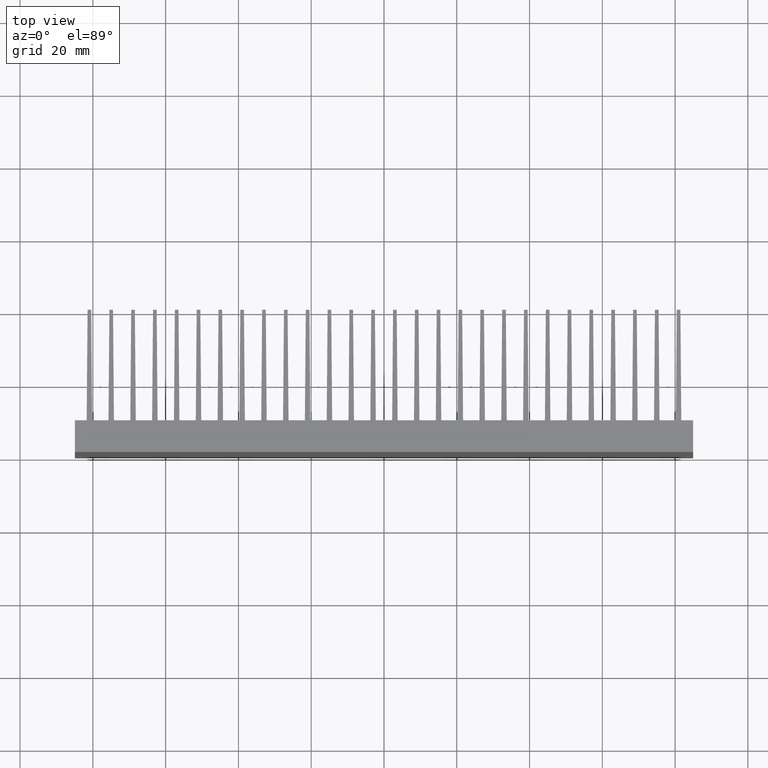
[diagram: clean part render]
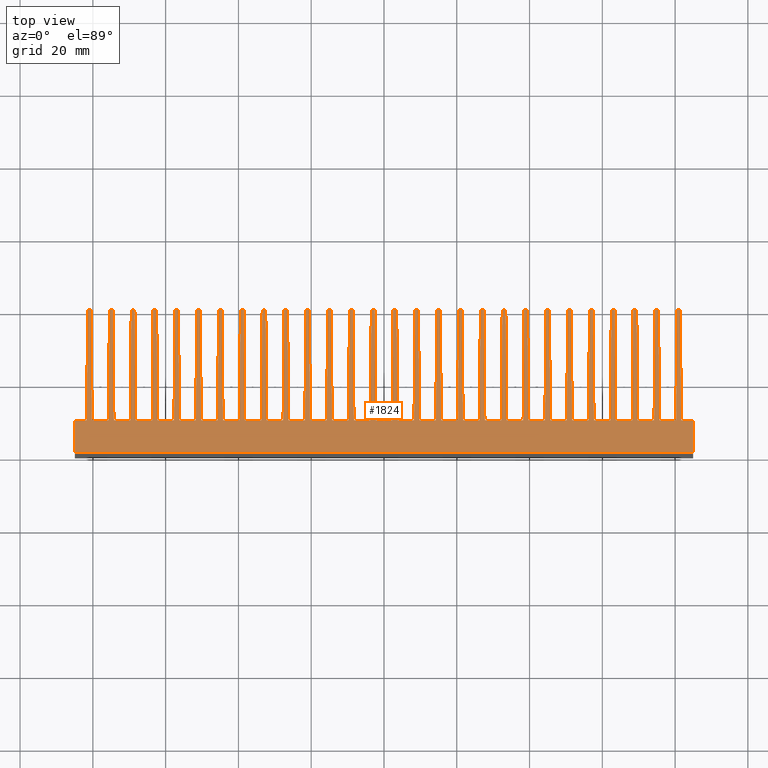
[diagram: same view with one face highlighted and labeled with its STEP entity id]
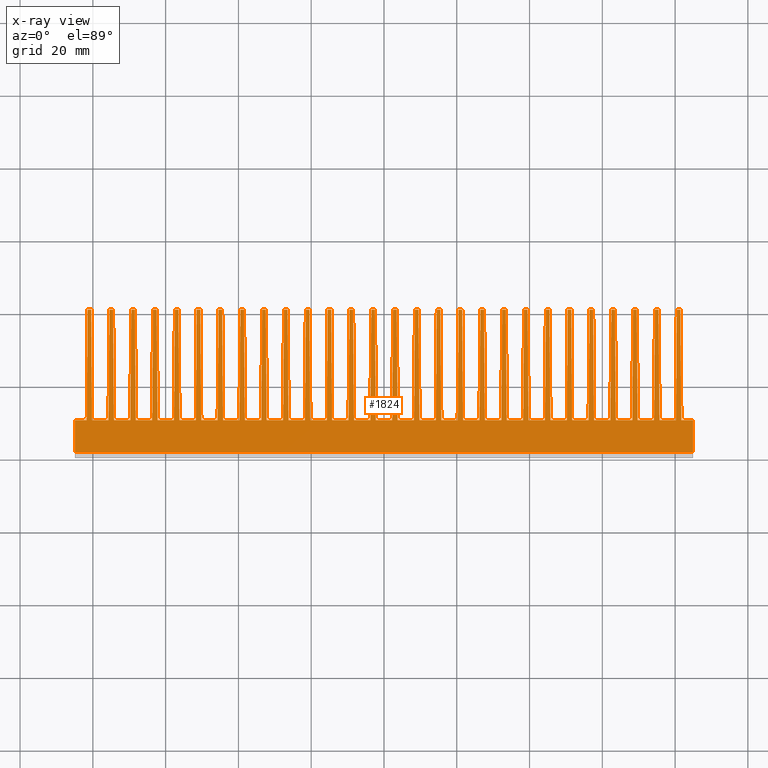
[diagram: x-ray of the same camera — body ghosted, the highlighted face saturated]
A machine part, top view. The second image highlights one B-rep face of the part: STEP entity #1824.
The next image is the same camera in x-ray: the body ghosted, the highlighted face saturated — about 0% of this face is hidden behind the body in this view.
In plain terms, the highlighted planar face has unit normal (0, 0, 1).
Its self-contained STEP definition (entity closure, byte-faithful):
#3 = CARTESIAN_POINT ( 'NONE',  ( 26.48303999999962599, 19.56251200000006918, 100.0000000000000000 ) ) ;
#4 = VERTEX_POINT ( 'NONE', #3162 ) ;
#6 = VECTOR ( 'NONE', #1157, 1000.000000000000114 ) ;
#8 = VERTEX_POINT ( 'NONE', #729 ) ;
#11 = LINE ( 'NONE', #1659, #6 ) ;
#29 = EDGE_CURVE ( 'NONE', #3586, #1692, #2043, .T. ) ;
#32 = CARTESIAN_POINT ( 'NONE',  ( 9.493919999998073678, 19.56251200000007273, 100.0000000000000000 ) ) ;
#34 = ORIENTED_EDGE ( 'NONE', *, *, #627, .T. ) ;
#45 = VERTEX_POINT ( 'NONE', #1727 ) ;
#47 = CARTESIAN_POINT ( 'NONE',  ( 51.71687999999949881, -10.81803199999957066, 100.0000000000000000 ) ) ;
#53 = DIRECTION ( 'NONE',  ( -0.008223406144932582373, -0.9999661872240358518, 0.0000000000000000000 ) ) ;
#57 = VECTOR ( 'NONE', #1649, 1000.000000000000227 ) ;
#60 = VECTOR ( 'NONE', #872, 1000.000000000000227 ) ;
#66 = CARTESIAN_POINT ( 'NONE',  ( -84.94560000000002731, -19.53748799999988250, 100.0000000000000000 ) ) ;
#73 = CARTESIAN_POINT ( 'NONE',  ( -50.46768000000113119, 19.56251200000005142, 100.0000000000000000 ) ) ;
#76 = DIRECTION ( 'NONE',  ( -0.008223406144887821304, -0.9999661872240361848, 0.0000000000000000000 ) ) ;
#78 = DIRECTION ( 'NONE',  ( -0.008223406144963184630, 0.9999661872240355187, 0.0000000000000000000 ) ) ;
#81 = CARTESIAN_POINT ( 'NONE',  ( -51.46704000000092805, 19.56251200000005142, 100.0000000000000000 ) ) ;
#82 = ORIENTED_EDGE ( 'NONE', *, *, #1459, .T. ) ;
#83 = ORIENTED_EDGE ( 'NONE', *, *, #3609, .T. ) ;
#93 = VECTOR ( 'NONE', #207, 1000.000000000000227 ) ;
#94 = CARTESIAN_POINT ( 'NONE',  ( -32.47920000000022611, 19.56251200000006207, 100.0000000000000000 ) ) ;
#96 = ORIENTED_EDGE ( 'NONE', *, *, #1485, .T. ) ;
#99 = VERTEX_POINT ( 'NONE', #834 ) ;
#103 = VECTOR ( 'NONE', #816, 1000.000000000000000 ) ;
#111 = CARTESIAN_POINT ( 'NONE',  ( -21.48624000000110001, 19.56251200000006207, 100.0000000000000000 ) ) ;
#112 = ORIENTED_EDGE ( 'NONE', *, *, #1000, .T. ) ;
#115 = ORIENTED_EDGE ( 'NONE', *, *, #3686, .T. ) ;
#132 = VERTEX_POINT ( 'NONE', #561 ) ;
#136 = ORIENTED_EDGE ( 'NONE', *, *, #3100, .T. ) ;
#141 = LINE ( 'NONE', #2219, #982 ) ;
#142 = DIRECTION ( 'NONE',  ( -0.008223406144917512831, 0.9999661872240360738, 0.0000000000000000000 ) ) ;
#150 = EDGE_CURVE ( 'NONE', #4, #1143, #3421, .T. ) ;
#155 = CARTESIAN_POINT ( 'NONE',  ( -26.23320000000150287, -10.81803199999958665, 100.0000000000000000 ) ) ;
#156 = VECTOR ( 'NONE', #2655, 1000.000000000000000 ) ;
#166 = CARTESIAN_POINT ( 'NONE',  ( -68.20632000000159678, -10.81803199999959730, 100.0000000000000000 ) ) ;
#168 = VECTOR ( 'NONE', #2084, 1000.000000000000227 ) ;
#171 = EDGE_CURVE ( 'NONE', #904, #1480, #3503, .T. ) ;
#183 = VERTEX_POINT ( 'NONE', #1070 ) ;
#190 = VERTEX_POINT ( 'NONE', #2091 ) ;
#206 = CARTESIAN_POINT ( 'NONE',  ( 33.47855999999909926, 19.56251200000006918, 100.0000000000000000 ) ) ;
#207 = DIRECTION ( 'NONE',  ( -0.008223406144963184630, 0.9999661872240355187, 0.0000000000000000000 ) ) ;
#211 = CARTESIAN_POINT ( 'NONE',  ( 38.47535999999898593, 19.56251200000007273, 100.0000000000000000 ) ) ;
#217 = VERTEX_POINT ( 'NONE', #1792 ) ;
#220 = CARTESIAN_POINT ( 'NONE',  ( 45.72071999999889158, -10.81803199999957066, 100.0000000000000000 ) ) ;
#222 = VERTEX_POINT ( 'NONE', #1644 ) ;
#227 = VERTEX_POINT ( 'NONE', #1759 ) ;
#228 = VERTEX_POINT ( 'NONE', #1656 ) ;
#233 = CARTESIAN_POINT ( 'NONE',  ( -81.69768000000067332, -10.81803199999960441, 100.0000000000000000 ) ) ;
#236 = CARTESIAN_POINT ( 'NONE',  ( 57.71303999999963708, -10.81803199999957066, 100.0000000000000000 ) ) ;
#238 = ORIENTED_EDGE ( 'NONE', *, *, #3592, .T. ) ;
#248 = EDGE_CURVE ( 'NONE', #3140, #289, #1282, .T. ) ;
#253 = DIRECTION ( 'NONE',  ( 1.000000000000000000, 0.0000000000000000000, 0.0000000000000000000 ) ) ;
#256 = ORIENTED_EDGE ( 'NONE', *, *, #1739, .T. ) ;
#264 = LINE ( 'NONE', #1851, #168 ) ;
#266 = CARTESIAN_POINT ( 'NONE',  ( 38.47535999999898593, 19.56251200000007273, 100.0000000000000000 ) ) ;
#271 = EDGE_CURVE ( 'NONE', #328, #3140, #1382, .T. ) ;
#276 = VERTEX_POINT ( 'NONE', #3738 ) ;
#289 = VERTEX_POINT ( 'NONE', #926 ) ;
#292 = ORIENTED_EDGE ( 'NONE', *, *, #2816, .T. ) ;
#297 = EDGE_LOOP ( 'NONE', ( #1350, #2881, #1109, #1917, #1854, #3393, #578, #2421, #3156, #481, #83, #2700, #1793, #2798, #2480, #2935, #3920, #535, #1158, #3440, #2746, #363, #3799, #3287, #3650, #2845, #863, #115, #2808, #3286, #1422, #510, #2241, #1133, #864, #821, #1954, #2869, #2604, #2678, #1730, #1632, #238, #497, #637, #34, #2991, #2908, #2161, #3485, #3578, #3401, #2830, #3909, #3218, #1952, #1301, #1377, #1559, #3908, #712, #1506, #2339, #3318, #3622, #2379, #461, #717, #2563, #2858, #2390, #3395, #1257, #3213, #2937, #2271, #3007, #1425, #1227, #3665, #1468, #256, #342, #1533, #3096, #112, #1994, #3760, #3765, #390, #1895, #3753, #2950, #2235, #3705, #3577, #3581, #3591, #82, #136, #2092, #3780, #1619, #1812, #1128, #292, #345, #96, #3878, #2321, #3841, #3524, #3656, #3399, #3203, #3252 ) ) ;
#302 = CARTESIAN_POINT ( 'NONE',  ( -3.747600000000151255, -10.81803199999958487, 100.0000000000000000 ) ) ;
#304 = EDGE_CURVE ( 'NONE', #1440, #3882, #1565, .T. ) ;
#309 = EDGE_CURVE ( 'NONE', #2537, #2014, #1542, .T. ) ;
#311 = LINE ( 'NONE', #236, #60 ) ;
#320 = DIRECTION ( 'NONE',  ( -0.008223406144932582373, -0.9999661872240358518, 0.0000000000000000000 ) ) ;
#323 = CARTESIAN_POINT ( 'NONE',  ( -56.46384000000126946, 19.56251200000005142, 100.0000000000000000 ) ) ;
#326 = CARTESIAN_POINT ( 'NONE',  ( -57.71304000000010603, -10.81803199999959553, 100.0000000000000000 ) ) ;
#328 = VERTEX_POINT ( 'NONE', #2331 ) ;
#333 = DIRECTION ( 'NONE',  ( -1.000000000000000000, -3.857409799997861729E-16, 0.0000000000000000000 ) ) ;
#336 = LINE ( 'NONE', #3849, #446 ) ;
#338 = CARTESIAN_POINT ( 'NONE',  ( 32.47919999999976426, 19.56251200000006918, 100.0000000000000000 ) ) ;
#342 = ORIENTED_EDGE ( 'NONE', *, *, #2956, .T. ) ;
#345 = ORIENTED_EDGE ( 'NONE', *, *, #790, .T. ) ;
#356 = EDGE_CURVE ( 'NONE', #2873, #183, #1943, .T. ) ;
#363 = ORIENTED_EDGE ( 'NONE', *, *, #271, .T. ) ;
#366 = VERTEX_POINT ( 'NONE', #266 ) ;
#368 = CARTESIAN_POINT ( 'NONE',  ( 56.21399999999993469, -10.81803199999957066, 100.0000000000000000 ) ) ;
#370 = LINE ( 'NONE', #166, #470 ) ;
#376 = LINE ( 'NONE', #1062, #673 ) ;
#390 = ORIENTED_EDGE ( 'NONE', *, *, #1193, .T. ) ;
#395 = EDGE_CURVE ( 'NONE', #1205, #2992, #2860, .T. ) ;
#397 = DIRECTION ( 'NONE',  ( -0.008223406144888277536, 0.9999661872240361848, 0.0000000000000000000 ) ) ;
#400 = VERTEX_POINT ( 'NONE', #1185 ) ;
#401 = CARTESIAN_POINT ( 'NONE',  ( -75.45168000000104769, 19.56251200000004786, 100.0000000000000000 ) ) ;
#415 = LINE ( 'NONE', #3839, #503 ) ;
#417 = LINE ( 'NONE', #220, #93 ) ;
#418 = VERTEX_POINT ( 'NONE', #2788 ) ;
#420 = VERTEX_POINT ( 'NONE', #1034 ) ;
#421 = CARTESIAN_POINT ( 'NONE',  ( 2.248559999999988790, -10.81803199999958132, 100.0000000000000000 ) ) ;
#422 = CARTESIAN_POINT ( 'NONE',  ( -63.45936000000029509, 19.56251200000005142, 100.0000000000000000 ) ) ;
#423 = LINE ( 'NONE', #3595, #468 ) ;
#424 = EDGE_CURVE ( 'NONE', #2177, #1679, #2769, .T. ) ;
#426 = EDGE_CURVE ( 'NONE', #2936, #486, #1714, .T. ) ;
#433 = DIRECTION ( 'NONE',  ( -1.000000000000000000, 0.0000000000000000000, 0.0000000000000000000 ) ) ;
#436 = CARTESIAN_POINT ( 'NONE',  ( -56.21400000000132025, -10.81803199999959375, 100.0000000000000000 ) ) ;
#438 = VERTEX_POINT ( 'NONE', #1500 ) ;
#441 = CARTESIAN_POINT ( 'NONE',  ( -8.494560000000568323, 19.56251200000005852, 100.0000000000000000 ) ) ;
#444 = EDGE_CURVE ( 'NONE', #2504, #2975, #2872, .T. ) ;
#446 = VECTOR ( 'NONE', #3628, 1000.000000000000114 ) ;
#460 = VERTEX_POINT ( 'NONE', #2727 ) ;
#461 = ORIENTED_EDGE ( 'NONE', *, *, #1510, .T. ) ;
#465 = LINE ( 'NONE', #1754, #2205 ) ;
#468 = VECTOR ( 'NONE', #3582, 1000.000000000000000 ) ;
#470 = VECTOR ( 'NONE', #3594, 1000.000000000000114 ) ;
#474 = CARTESIAN_POINT ( 'NONE',  ( 84.95439999999997838, -10.81803199999956000, 100.0000000000000000 ) ) ;
#481 = ORIENTED_EDGE ( 'NONE', *, *, #2447, .T. ) ;
#486 = VERTEX_POINT ( 'NONE', #3887 ) ;
#488 = VECTOR ( 'NONE', #2654, 1000.000000000000000 ) ;
#493 = DIRECTION ( 'NONE',  ( 0.0000000000000000000, -1.000000000000000000, 0.0000000000000000000 ) ) ;
#494 = EDGE_CURVE ( 'NONE', #438, #2559, #2668, .T. ) ;
#496 = VECTOR ( 'NONE', #2649, 1000.000000000000000 ) ;
#497 = ORIENTED_EDGE ( 'NONE', *, *, #3202, .T. ) ;
#498 = CARTESIAN_POINT ( 'NONE',  ( 21.48623999999835377, 19.56251200000006918, 100.0000000000000000 ) ) ;
#501 = CARTESIAN_POINT ( 'NONE',  ( -51.46704000000092805, 19.56251200000005142, 100.0000000000000000 ) ) ;
#503 = VECTOR ( 'NONE', #3571, 1000.000000000000114 ) ;
#504 = EDGE_CURVE ( 'NONE', #1027, #1654, #2517, .T. ) ;
#508 = LINE ( 'NONE', #740, #103 ) ;
#509 = CARTESIAN_POINT ( 'NONE',  ( -84.94560000000002731, -10.81803199999960441, 100.0000000000000000 ) ) ;
#510 = ORIENTED_EDGE ( 'NONE', *, *, #3326, .T. ) ;
#516 = VECTOR ( 'NONE', #2158, 1000.000000000000000 ) ;
#522 = EDGE_CURVE ( 'NONE', #3812, #1518, #2485, .T. ) ;
#527 = CARTESIAN_POINT ( 'NONE',  ( 68.20632000000024675, -10.81803199999956711, 100.0000000000000000 ) ) ;
#535 = ORIENTED_EDGE ( 'NONE', *, *, #356, .T. ) ;
#554 = LINE ( 'NONE', #3504, #516 ) ;
#561 = CARTESIAN_POINT ( 'NONE',  ( 63.70919999999978245, -10.81803199999956888, 100.0000000000000000 ) ) ;
#562 = DIRECTION ( 'NONE',  ( -0.008223406144917910082, -0.9999661872240359628, 0.0000000000000000000 ) ) ;
#568 = LINE ( 'NONE', #1127, #917 ) ;
#578 = ORIENTED_EDGE ( 'NONE', *, *, #1768, .T. ) ;
#601 = DIRECTION ( 'NONE',  ( -0.008223406144962728398, -0.9999661872240355187, 0.0000000000000000000 ) ) ;
#609 = CARTESIAN_POINT ( 'NONE',  ( -38.22552000000178651, -10.81803199999958842, 100.0000000000000000 ) ) ;
#610 = CARTESIAN_POINT ( 'NONE',  ( 68.45615999999881751, 19.56251200000007984, 100.0000000000000000 ) ) ;
#613 = CARTESIAN_POINT ( 'NONE',  ( 69.45551999999815962, 19.56251200000007984, 100.0000000000000000 ) ) ;
#619 = CARTESIAN_POINT ( 'NONE',  ( -9.493920000000795056, 19.56251200000005852, 100.0000000000000000 ) ) ;
#621 = VECTOR ( 'NONE', #1926, 1000.000000000000000 ) ;
#624 = CARTESIAN_POINT ( 'NONE',  ( -50.21784000000116777, -10.81803199999959375, 100.0000000000000000 ) ) ;
#626 = CARTESIAN_POINT ( 'NONE',  ( 51.46703999999863299, 19.56251200000007984, 100.0000000000000000 ) ) ;
#627 = EDGE_CURVE ( 'NONE', #190, #2755, #11, .T. ) ;
#629 = CARTESIAN_POINT ( 'NONE',  ( -38.47536000000037859, 19.56251200000005497, 100.0000000000000000 ) ) ;
#633 = VERTEX_POINT ( 'NONE', #3406 ) ;
#636 = CARTESIAN_POINT ( 'NONE',  ( 75.45167999999830499, 19.56251200000008339, 100.0000000000000000 ) ) ;
#637 = ORIENTED_EDGE ( 'NONE', *, *, #3741, .T. ) ;
#641 = DIRECTION ( 'NONE',  ( -0.008223406144917969063, -0.9999661872240360738, 0.0000000000000000000 ) ) ;
#644 = CARTESIAN_POINT ( 'NONE',  ( -27.48240000000032168, 19.56251200000006207, 100.0000000000000000 ) ) ;
#646 = VERTEX_POINT ( 'NONE', #2037 ) ;
#648 = DIRECTION ( 'NONE',  ( -1.000000000000000000, -3.857409799996695201E-16, 0.0000000000000000000 ) ) ;
#657 = CARTESIAN_POINT ( 'NONE',  ( 44.22168000000054633, -10.81803199999957066, 100.0000000000000000 ) ) ;
#658 = VERTEX_POINT ( 'NONE', #2779 ) ;
#665 = VECTOR ( 'NONE', #3375, 1000.000000000000000 ) ;
#669 = LINE ( 'NONE', #2607, #1379 ) ;
#671 = VERTEX_POINT ( 'NONE', #2103 ) ;
#673 = VECTOR ( 'NONE', #1498, 1000.000000000000000 ) ;
#684 = DIRECTION ( 'NONE',  ( -1.000000000000000000, 0.0000000000000000000, 0.0000000000000000000 ) ) ;
#691 = DIRECTION ( 'NONE',  ( -1.000000000000000000, 0.0000000000000000000, 0.0000000000000000000 ) ) ;
#698 = DIRECTION ( 'NONE',  ( -1.000000000000000000, 0.0000000000000000000, 0.0000000000000000000 ) ) ;
#700 = CARTESIAN_POINT ( 'NONE',  ( -21.73607999999967788, -10.81803199999958487, 100.0000000000000000 ) ) ;
#706 = DIRECTION ( 'NONE',  ( -0.008223406144888279271, 0.9999661872240361848, 0.0000000000000000000 ) ) ;
#709 = CARTESIAN_POINT ( 'NONE',  ( -56.46384000000126946, 19.56251200000005142, 100.0000000000000000 ) ) ;
#712 = ORIENTED_EDGE ( 'NONE', *, *, #2198, .T. ) ;
#713 = EDGE_CURVE ( 'NONE', #633, #1415, #909, .T. ) ;
#714 = DIRECTION ( 'NONE',  ( -1.000000000000000000, 0.0000000000000000000, 0.0000000000000000000 ) ) ;
#717 = ORIENTED_EDGE ( 'NONE', *, *, #1016, .T. ) ;
#723 = VERTEX_POINT ( 'NONE', #2026 ) ;
#725 = CARTESIAN_POINT ( 'NONE',  ( 2.498399999999926901, 19.56251200000006563, 100.0000000000000000 ) ) ;
#726 = EDGE_CURVE ( 'NONE', #3763, #795, #465, .T. ) ;
#728 = CARTESIAN_POINT ( 'NONE',  ( -20.48688000000084486, 19.56251200000006207, 100.0000000000000000 ) ) ;
#729 = CARTESIAN_POINT ( 'NONE',  ( -84.94560000000002731, -10.81803199999960441, 100.0000000000000000 ) ) ;
#731 = LINE ( 'NONE', #1556, #777 ) ;
#732 = CARTESIAN_POINT ( 'NONE',  ( -15.73992000000090030, -10.81803199999958665, 100.0000000000000000 ) ) ;
#736 = CARTESIAN_POINT ( 'NONE',  ( 75.70151999999917791, -10.81803199999956355, 100.0000000000000000 ) ) ;
#738 = DIRECTION ( 'NONE',  ( -1.000000000000000000, -3.857409799997861729E-16, 0.0000000000000000000 ) ) ;
#740 = CARTESIAN_POINT ( 'NONE',  ( -39.72455999999921517, -10.81803199999959020, 100.0000000000000000 ) ) ;
#741 = VERTEX_POINT ( 'NONE', #2307 ) ;
#745 = EDGE_CURVE ( 'NONE', #2931, #2504, #820, .T. ) ;
#746 = CARTESIAN_POINT ( 'NONE',  ( -68.45616000000063650, 19.56251200000004786, 100.0000000000000000 ) ) ;
#752 = DIRECTION ( 'NONE',  ( -0.008223406144887821304, 0.9999661872240361848, 0.0000000000000000000 ) ) ;
#753 = LINE ( 'NONE', #3321, #766 ) ;
#755 = CARTESIAN_POINT ( 'NONE',  ( -32.22936000000164825, -10.81803199999958665, 100.0000000000000000 ) ) ;
#760 = VECTOR ( 'NONE', #853, 1000.000000000000227 ) ;
#762 = EDGE_CURVE ( 'NONE', #3333, #3718, #818, .T. ) ;
#763 = VECTOR ( 'NONE', #3929, 1000.000000000000114 ) ;
#766 = VECTOR ( 'NONE', #3352, 1000.000000000000000 ) ;
#769 = CARTESIAN_POINT ( 'NONE',  ( 62.45999999999957453, 19.56251200000007628, 100.0000000000000000 ) ) ;
#775 = VECTOR ( 'NONE', #859, 1000.000000000000000 ) ;
#777 = VECTOR ( 'NONE', #1306, 1000.000000000000227 ) ;
#778 = CARTESIAN_POINT ( 'NONE',  ( -39.47472000000063730, 19.56251200000005497, 100.0000000000000000 ) ) ;
#783 = DIRECTION ( 'NONE',  ( -0.008223406144933269324, 0.9999661872240358518, 0.0000000000000000000 ) ) ;
#786 = VERTEX_POINT ( 'NONE', #2852 ) ;
#788 = LINE ( 'NONE', #3473, #665 ) ;
#790 = EDGE_CURVE ( 'NONE', #418, #420, #3902, .T. ) ;
#795 = VERTEX_POINT ( 'NONE', #2730 ) ;
#797 = CARTESIAN_POINT ( 'NONE',  ( -80.19864000000097803, -10.81803199999960263, 100.0000000000000000 ) ) ;
#802 = DIRECTION ( 'NONE',  ( -1.000000000000000000, -3.857409799997063994E-16, 0.0000000000000000000 ) ) ;
#812 = LINE ( 'NONE', #1202, #2195 ) ;
#816 = DIRECTION ( 'NONE',  ( -1.000000000000000000, -3.857409799995909299E-16, 0.0000000000000000000 ) ) ;
#818 = LINE ( 'NONE', #1008, #488 ) ;
#820 = LINE ( 'NONE', #1114, #763 ) ;
#821 = ORIENTED_EDGE ( 'NONE', *, *, #1405, .T. ) ;
#824 = CARTESIAN_POINT ( 'NONE',  ( -33.47856000000048482, 19.56251200000006207, 100.0000000000000000 ) ) ;
#827 = CARTESIAN_POINT ( 'NONE',  ( 39.47471999999788039, 19.56251200000007273, 100.0000000000000000 ) ) ;
#829 = CARTESIAN_POINT ( 'NONE',  ( -63.70920000000023009, -10.81803199999959553, 100.0000000000000000 ) ) ;
#834 = CARTESIAN_POINT ( 'NONE',  ( -26.48304000000098313, 19.56251200000006207, 100.0000000000000000 ) ) ;
#835 = VERTEX_POINT ( 'NONE', #2551 ) ;
#836 = CARTESIAN_POINT ( 'NONE',  ( 69.70535999999903254, -10.81803199999956711, 100.0000000000000000 ) ) ;
#840 = LINE ( 'NONE', #155, #850 ) ;
#842 = VERTEX_POINT ( 'NONE', #233 ) ;
#850 = VECTOR ( 'NONE', #142, 999.9999999999998863 ) ;
#853 = DIRECTION ( 'NONE',  ( -0.008223406144963198508, 0.9999661872240355187, 0.0000000000000000000 ) ) ;
#856 = CARTESIAN_POINT ( 'NONE',  ( 38.22552000000040806, -10.81803199999957421, 100.0000000000000000 ) ) ;
#859 = DIRECTION ( 'NONE',  ( -0.008223406144933038606, -0.9999661872240358518, 0.0000000000000000000 ) ) ;
#860 = CARTESIAN_POINT ( 'NONE',  ( 27.48239999999849204, 19.56251200000006918, 100.0000000000000000 ) ) ;
#863 = ORIENTED_EDGE ( 'NONE', *, *, #1549, .T. ) ;
#864 = ORIENTED_EDGE ( 'NONE', *, *, #2286, .T. ) ;
#868 = LINE ( 'NONE', #1163, #1012 ) ;
#871 = EDGE_CURVE ( 'NONE', #1400, #460, #3862, .T. ) ;
#872 = DIRECTION ( 'NONE',  ( -0.008223406144963184630, 0.9999661872240355187, 0.0000000000000000000 ) ) ;
#873 = EDGE_CURVE ( 'NONE', #289, #1819, #417, .T. ) ;
#875 = DIRECTION ( 'NONE',  ( -1.000000000000000000, 0.0000000000000000000, 0.0000000000000000000 ) ) ;
#876 = CARTESIAN_POINT ( 'NONE',  ( 3.747599999999690290, -10.81803199999957954, 100.0000000000000000 ) ) ;
#877 = CARTESIAN_POINT ( 'NONE',  ( -2.248560000000448866, -10.81803199999958309, 100.0000000000000000 ) ) ;
#879 = CARTESIAN_POINT ( 'NONE',  ( -2.498400000000402521, 19.56251200000006563, 100.0000000000000000 ) ) ;
#881 = CARTESIAN_POINT ( 'NONE',  ( -44.47152000000052396, 19.56251200000005497, 100.0000000000000000 ) ) ;
#882 = VERTEX_POINT ( 'NONE', #1968 ) ;
#893 = LINE ( 'NONE', #111, #942 ) ;
#903 = LINE ( 'NONE', #81, #940 ) ;
#904 = VERTEX_POINT ( 'NONE', #1009 ) ;
#908 = CARTESIAN_POINT ( 'NONE',  ( -84.94560000000002731, -19.53748799999988250, 100.0000000000000000 ) ) ;
#909 = LINE ( 'NONE', #1136, #156 ) ;
#912 = DIRECTION ( 'NONE',  ( -1.000000000000000000, 0.0000000000000000000, 0.0000000000000000000 ) ) ;
#915 = CARTESIAN_POINT ( 'NONE',  ( 27.73223999999936140, -10.81803199999957776, 100.0000000000000000 ) ) ;
#917 = VECTOR ( 'NONE', #2776, 1000.000000000000114 ) ;
#918 = EDGE_CURVE ( 'NONE', #366, #1418, #3108, .T. ) ;
#925 = DIRECTION ( 'NONE',  ( -0.008223406144963184630, 0.9999661872240355187, 0.0000000000000000000 ) ) ;
#926 = CARTESIAN_POINT ( 'NONE',  ( 45.72071999999889158, -10.81803199999957066, 100.0000000000000000 ) ) ;
#927 = CARTESIAN_POINT ( 'NONE',  ( -33.72840000000043403, -10.81803199999958842, 100.0000000000000000 ) ) ;
#928 = VERTEX_POINT ( 'NONE', #3240 ) ;
#932 = CARTESIAN_POINT ( 'NONE',  ( -14.49072000000070837, 19.56251200000005852, 100.0000000000000000 ) ) ;
#939 = DIRECTION ( 'NONE',  ( -0.008223406144933040340, 0.9999661872240358518, 0.0000000000000000000 ) ) ;
#940 = VECTOR ( 'NONE', #53, 1000.000000000000114 ) ;
#941 = VERTEX_POINT ( 'NONE', #3233 ) ;
#942 = VECTOR ( 'NONE', #76, 1000.000000000000227 ) ;
#950 = VECTOR ( 'NONE', #3223, 1000.000000000000227 ) ;
#952 = LINE ( 'NONE', #47, #1004 ) ;
#954 = LINE ( 'NONE', #1346, #2132 ) ;
#962 = DIRECTION ( 'NONE',  ( -1.000000000000000000, 0.0000000000000000000, 0.0000000000000000000 ) ) ;
#963 = LINE ( 'NONE', #1484, #1101 ) ;
#982 = VECTOR ( 'NONE', #2206, 1000.000000000000000 ) ;
#993 = VERTEX_POINT ( 'NONE', #2658 ) ;
#999 = LINE ( 'NONE', #827, #1040 ) ;
#1000 = EDGE_CURVE ( 'NONE', #1053, #658, #336, .T. ) ;
#1001 = EDGE_CURVE ( 'NONE', #842, #8, #423, .T. ) ;
#1002 = DIRECTION ( 'NONE',  ( -1.000000000000000000, 0.0000000000000000000, 0.0000000000000000000 ) ) ;
#1004 = VECTOR ( 'NONE', #78, 1000.000000000000114 ) ;
#1005 = CARTESIAN_POINT ( 'NONE',  ( 81.69767999999930908, -10.81803199999956000, 100.0000000000000000 ) ) ;
#1008 = CARTESIAN_POINT ( 'NONE',  ( -9.743760000000287747, -10.81803199999958487, 100.0000000000000000 ) ) ;
#1009 = CARTESIAN_POINT ( 'NONE',  ( -38.47536000000037859, 19.56251200000005497, 100.0000000000000000 ) ) ;
#1012 = VECTOR ( 'NONE', #3552, 1000.000000000000000 ) ;
#1016 = EDGE_CURVE ( 'NONE', #3243, #1308, #415, .T. ) ;
#1018 = VERTEX_POINT ( 'NONE', #3522 ) ;
#1025 = CARTESIAN_POINT ( 'NONE',  ( 15.73991999999908131, -10.81803199999957599, 100.0000000000000000 ) ) ;
#1027 = VERTEX_POINT ( 'NONE', #3568 ) ;
#1033 = VERTEX_POINT ( 'NONE', #3729 ) ;
#1034 = CARTESIAN_POINT ( 'NONE',  ( -80.19864000000097803, -10.81803199999960263, 100.0000000000000000 ) ) ;
#1040 = VECTOR ( 'NONE', #2359, 1000.000000000000000 ) ;
#1047 = EDGE_CURVE ( 'NONE', #3017, #3886, #554, .T. ) ;
#1050 = DIRECTION ( 'NONE',  ( -0.008223406144963404940, 0.9999661872240355187, 0.0000000000000000000 ) ) ;
#1053 = VERTEX_POINT ( 'NONE', #3515 ) ;
#1057 = CARTESIAN_POINT ( 'NONE',  ( -81.44784000000119306, 19.56251200000004431, 100.0000000000000000 ) ) ;
#1058 = VECTOR ( 'NONE', #1455, 1000.000000000000000 ) ;
#1062 = CARTESIAN_POINT ( 'NONE',  ( -27.73224000000117684, -10.81803199999958665, 100.0000000000000000 ) ) ;
#1063 = LINE ( 'NONE', #1487, #1291 ) ;
#1070 = CARTESIAN_POINT ( 'NONE',  ( 56.21399999999993469, -10.81803199999957066, 100.0000000000000000 ) ) ;
#1072 = LINE ( 'NONE', #3618, #1125 ) ;
#1083 = AXIS2_PLACEMENT_3D ( 'NONE', #1293, #1237, #1232 ) ;
#1093 = LINE ( 'NONE', #3806, #1138 ) ;
#1101 = VECTOR ( 'NONE', #2495, 1000.000000000000000 ) ;
#1105 = VERTEX_POINT ( 'NONE', #3357 ) ;
#1109 = ORIENTED_EDGE ( 'NONE', *, *, #3930, .T. ) ;
#1111 = EDGE_CURVE ( 'NONE', #2688, #3800, #753, .T. ) ;
#1113 = VERTEX_POINT ( 'NONE', #3348 ) ;
#1114 = CARTESIAN_POINT ( 'NONE',  ( 2.498399999999926901, 19.56251200000006563, 100.0000000000000000 ) ) ;
#1119 = EDGE_CURVE ( 'NONE', #1454, #2540, #788, .T. ) ;
#1123 = EDGE_CURVE ( 'NONE', #486, #99, #840, .T. ) ;
#1125 = VECTOR ( 'NONE', #714, 1000.000000000000000 ) ;
#1127 = CARTESIAN_POINT ( 'NONE',  ( -8.244720000001974469, -10.81803199999958487, 100.0000000000000000 ) ) ;
#1128 = ORIENTED_EDGE ( 'NONE', *, *, #1111, .T. ) ;
#1133 = ORIENTED_EDGE ( 'NONE', *, *, #3544, .T. ) ;
#1136 = CARTESIAN_POINT ( 'NONE',  ( 8.244720000000128834, -10.81803199999957776, 100.0000000000000000 ) ) ;
#1138 = VECTOR ( 'NONE', #3714, 1000.000000000000227 ) ;
#1143 = VERTEX_POINT ( 'NONE', #3343 ) ;
#1147 = CARTESIAN_POINT ( 'NONE',  ( 32.47919999999976426, 19.56251200000006918, 100.0000000000000000 ) ) ;
#1157 = DIRECTION ( 'NONE',  ( -0.008223406144902436349, -0.9999661872240360738, 0.0000000000000000000 ) ) ;
#1158 = ORIENTED_EDGE ( 'NONE', *, *, #1700, .T. ) ;
#1161 = CARTESIAN_POINT ( 'NONE',  ( 62.21016000000008006, -10.81803199999956888, 100.0000000000000000 ) ) ;
#1163 = CARTESIAN_POINT ( 'NONE',  ( -69.70535999999947308, -10.81803199999959730, 100.0000000000000000 ) ) ;
#1166 = DIRECTION ( 'NONE',  ( -0.008223406144933498307, -0.9999661872240358518, 0.0000000000000000000 ) ) ;
#1169 = DIRECTION ( 'NONE',  ( -0.008223406144887592320, -0.9999661872240361848, 0.0000000000000000000 ) ) ;
#1173 = CARTESIAN_POINT ( 'NONE',  ( -68.20632000000159678, -10.81803199999959730, 100.0000000000000000 ) ) ;
#1176 = CARTESIAN_POINT ( 'NONE',  ( 26.48303999999962599, 19.56251200000006918, 100.0000000000000000 ) ) ;
#1179 = VECTOR ( 'NONE', #875, 1000.000000000000000 ) ;
#1182 = CARTESIAN_POINT ( 'NONE',  ( 3.497759999998821367, 19.56251200000006563, 100.0000000000000000 ) ) ;
#1185 = CARTESIAN_POINT ( 'NONE',  ( 39.47471999999788039, 19.56251200000007273, 100.0000000000000000 ) ) ;
#1187 = LINE ( 'NONE', #1646, #1389 ) ;
#1192 = EDGE_CURVE ( 'NONE', #2176, #2936, #893, .T. ) ;
#1193 = EDGE_CURVE ( 'NONE', #3221, #2177, #903, .T. ) ;
#1202 = CARTESIAN_POINT ( 'NONE',  ( -50.21784000000116777, -10.81803199999959375, 100.0000000000000000 ) ) ;
#1205 = VERTEX_POINT ( 'NONE', #32 ) ;
#1209 = DIRECTION ( 'NONE',  ( -0.008223406144932582373, -0.9999661872240358518, 0.0000000000000000000 ) ) ;
#1214 = LINE ( 'NONE', #879, #1179 ) ;
#1223 = EDGE_CURVE ( 'NONE', #786, #3489, #952, .T. ) ;
#1227 = ORIENTED_EDGE ( 'NONE', *, *, #871, .T. ) ;
#1229 = LINE ( 'NONE', #932, #1230 ) ;
#1230 = VECTOR ( 'NONE', #912, 1000.000000000000000 ) ;
#1232 = DIRECTION ( 'NONE',  ( 1.000000000000000000, 0.0000000000000000000, -0.0000000000000000000 ) ) ;
#1237 = DIRECTION ( 'NONE',  ( 0.0000000000000000000, 0.0000000000000000000, 1.000000000000000000 ) ) ;
#1243 = PLANE ( 'NONE',  #1083 ) ;
#1246 = EDGE_CURVE ( 'NONE', #400, #366, #999, .T. ) ;
#1252 = CARTESIAN_POINT ( 'NONE',  ( -27.48240000000032168, 19.56251200000006207, 100.0000000000000000 ) ) ;
#1257 = ORIENTED_EDGE ( 'NONE', *, *, #2694, .T. ) ;
#1259 = VERTEX_POINT ( 'NONE', #73 ) ;
#1260 = CARTESIAN_POINT ( 'NONE',  ( 45.47087999999801866, 19.56251200000007628, 100.0000000000000000 ) ) ;
#1268 = VERTEX_POINT ( 'NONE', #2367 ) ;
#1272 = LINE ( 'NONE', #915, #1287 ) ;
#1282 = LINE ( 'NONE', #1567, #3123 ) ;
#1283 = CARTESIAN_POINT ( 'NONE',  ( -15.73992000000090030, -10.81803199999958665, 100.0000000000000000 ) ) ;
#1285 = LINE ( 'NONE', #2597, #760 ) ;
#1287 = VECTOR ( 'NONE', #925, 1000.000000000000227 ) ;
#1291 = VECTOR ( 'NONE', #3619, 1000.000000000000227 ) ;
#1293 = CARTESIAN_POINT ( 'NONE',  ( 0.0000000000000000000, 0.0000000000000000000, 100.0000000000000000 ) ) ;
#1294 = EDGE_CURVE ( 'NONE', #1819, #1033, #1072, .T. ) ;
#1296 = EDGE_CURVE ( 'NONE', #2182, #941, #1093, .T. ) ;
#1301 = ORIENTED_EDGE ( 'NONE', *, *, #1406, .T. ) ;
#1306 = DIRECTION ( 'NONE',  ( -0.008223406144887821304, -0.9999661872240361848, 0.0000000000000000000 ) ) ;
#1308 = VERTEX_POINT ( 'NONE', #2600 ) ;
#1315 = LINE ( 'NONE', #732, #1465 ) ;
#1320 = VERTEX_POINT ( 'NONE', #3844 ) ;
#1346 = CARTESIAN_POINT ( 'NONE',  ( 51.46703999999863299, 19.56251200000007984, 100.0000000000000000 ) ) ;
#1350 = ORIENTED_EDGE ( 'NONE', *, *, #150, .T. ) ;
#1356 = LINE ( 'NONE', #829, #1367 ) ;
#1367 = VECTOR ( 'NONE', #802, 1000.000000000000000 ) ;
#1373 = CARTESIAN_POINT ( 'NONE',  ( 50.46767999999929089, 19.56251200000007984, 100.0000000000000000 ) ) ;
#1376 = LINE ( 'NONE', #709, #1526 ) ;
#1377 = ORIENTED_EDGE ( 'NONE', *, *, #494, .T. ) ;
#1379 = VECTOR ( 'NONE', #2787, 1000.000000000000000 ) ;
#1382 = LINE ( 'NONE', #1373, #1417 ) ;
#1389 = VECTOR ( 'NONE', #1586, 1000.000000000000000 ) ;
#1397 = EDGE_CURVE ( 'NONE', #3530, #222, #1229, .T. ) ;
#1400 = VERTEX_POINT ( 'NONE', #927 ) ;
#1402 = CARTESIAN_POINT ( 'NONE',  ( 56.46383999999942915, 19.56251200000007984, 100.0000000000000000 ) ) ;
#1405 = EDGE_CURVE ( 'NONE', #3922, #1454, #1272, .T. ) ;
#1406 = EDGE_CURVE ( 'NONE', #993, #438, #1214, .T. ) ;
#1415 = VERTEX_POINT ( 'NONE', #876 ) ;
#1417 = VECTOR ( 'NONE', #1989, 1000.000000000000114 ) ;
#1418 = VERTEX_POINT ( 'NONE', #856 ) ;
#1422 = ORIENTED_EDGE ( 'NONE', *, *, #3838, .T. ) ;
#1424 = LINE ( 'NONE', #797, #1432 ) ;
#1425 = ORIENTED_EDGE ( 'NONE', *, *, #2962, .T. ) ;
#1432 = VECTOR ( 'NONE', #783, 1000.000000000000114 ) ;
#1434 = CARTESIAN_POINT ( 'NONE',  ( -14.49072000000070837, 19.56251200000005852, 100.0000000000000000 ) ) ;
#1440 = VERTEX_POINT ( 'NONE', #836 ) ;
#1453 = LINE ( 'NONE', #728, #1479 ) ;
#1454 = VERTEX_POINT ( 'NONE', #860 ) ;
#1455 = DIRECTION ( 'NONE',  ( -1.000000000000000000, 0.0000000000000000000, 0.0000000000000000000 ) ) ;
#1459 = EDGE_CURVE ( 'NONE', #2014, #3412, #1356, .T. ) ;
#1465 = VECTOR ( 'NONE', #738, 1000.000000000000000 ) ;
#1468 = ORIENTED_EDGE ( 'NONE', *, *, #171, .T. ) ;
#1473 = CARTESIAN_POINT ( 'NONE',  ( -57.46320000000016393, 19.56251200000005142, 100.0000000000000000 ) ) ;
#1479 = VECTOR ( 'NONE', #684, 1000.000000000000000 ) ;
#1480 = VERTEX_POINT ( 'NONE', #778 ) ;
#1484 = CARTESIAN_POINT ( 'NONE',  ( -45.72072000000071057, -10.81803199999959197, 100.0000000000000000 ) ) ;
#1485 = EDGE_CURVE ( 'NONE', #420, #227, #1424, .T. ) ;
#1487 = CARTESIAN_POINT ( 'NONE',  ( 15.73991999999908131, -10.81803199999957599, 100.0000000000000000 ) ) ;
#1497 = DIRECTION ( 'NONE',  ( -1.000000000000000000, -3.857409799997861729E-16, 0.0000000000000000000 ) ) ;
#1498 = DIRECTION ( 'NONE',  ( -1.000000000000000000, 0.0000000000000000000, 0.0000000000000000000 ) ) ;
#1500 = CARTESIAN_POINT ( 'NONE',  ( -3.497760000000656788, 19.56251200000006563, 100.0000000000000000 ) ) ;
#1503 = CARTESIAN_POINT ( 'NONE',  ( 74.20247999999946842, -10.81803199999956533, 100.0000000000000000 ) ) ;
#1506 = ORIENTED_EDGE ( 'NONE', *, *, #1621, .T. ) ;
#1507 = DIRECTION ( 'NONE',  ( -0.008223406144932526862, -0.9999661872240358518, 0.0000000000000000000 ) ) ;
#1510 = EDGE_CURVE ( 'NONE', #3095, #3243, #1315, .T. ) ;
#1513 = DIRECTION ( 'NONE',  ( -0.008223406144917740079, -0.9999661872240360738, 0.0000000000000000000 ) ) ;
#1518 = VERTEX_POINT ( 'NONE', #769 ) ;
#1526 = VECTOR ( 'NONE', #698, 1000.000000000000000 ) ;
#1527 = DIRECTION ( 'NONE',  ( -1.000000000000000000, 0.0000000000000000000, 0.0000000000000000000 ) ) ;
#1533 = ORIENTED_EDGE ( 'NONE', *, *, #3267, .T. ) ;
#1534 = DIRECTION ( 'NONE',  ( -1.000000000000000000, 0.0000000000000000000, 0.0000000000000000000 ) ) ;
#1539 = VERTEX_POINT ( 'NONE', #736 ) ;
#1542 = LINE ( 'NONE', #2070, #1918 ) ;
#1543 = EDGE_CURVE ( 'NONE', #1701, #3586, #1376, .T. ) ;
#1545 = EDGE_CURVE ( 'NONE', #1308, #2176, #1453, .T. ) ;
#1549 = EDGE_CURVE ( 'NONE', #3661, #1760, #1562, .T. ) ;
#1556 = CARTESIAN_POINT ( 'NONE',  ( 20.48687999999945930, 19.56251200000006918, 100.0000000000000000 ) ) ;
#1559 = ORIENTED_EDGE ( 'NONE', *, *, #2068, .T. ) ;
#1562 = LINE ( 'NONE', #657, #1618 ) ;
#1565 = LINE ( 'NONE', #1696, #1611 ) ;
#1567 = CARTESIAN_POINT ( 'NONE',  ( 50.21784000000071302, -10.81803199999957066, 100.0000000000000000 ) ) ;
#1573 = CARTESIAN_POINT ( 'NONE',  ( 39.72455999999875331, -10.81803199999957243, 100.0000000000000000 ) ) ;
#1583 = LINE ( 'NONE', #824, #775 ) ;
#1586 = DIRECTION ( 'NONE',  ( -1.000000000000000000, 0.0000000000000000000, 0.0000000000000000000 ) ) ;
#1587 = DIRECTION ( 'NONE',  ( -0.008223406144888334782, 0.9999661872240361848, 0.0000000000000000000 ) ) ;
#1588 = DIRECTION ( 'NONE',  ( -0.008223406144963184630, 0.9999661872240355187, 0.0000000000000000000 ) ) ;
#1590 = LINE ( 'NONE', #2799, #1693 ) ;
#1593 = CARTESIAN_POINT ( 'NONE',  ( -14.24088000000211451, -10.81803199999958665, 100.0000000000000000 ) ) ;
#1594 = DIRECTION ( 'NONE',  ( -0.008223406144887821304, -0.9999661872240361848, 0.0000000000000000000 ) ) ;
#1600 = VERTEX_POINT ( 'NONE', #624 ) ;
#1605 = CARTESIAN_POINT ( 'NONE',  ( -51.71688000000087015, -10.81803199999959375, 100.0000000000000000 ) ) ;
#1607 = VERTEX_POINT ( 'NONE', #636 ) ;
#1611 = VECTOR ( 'NONE', #3110, 1000.000000000000227 ) ;
#1612 = CARTESIAN_POINT ( 'NONE',  ( 9.493919999998073678, 19.56251200000007273, 100.0000000000000000 ) ) ;
#1613 = EDGE_CURVE ( 'NONE', #3773, #2130, #1667, .T. ) ;
#1616 = CARTESIAN_POINT ( 'NONE',  ( -39.47472000000063730, 19.56251200000005497, 100.0000000000000000 ) ) ;
#1618 = VECTOR ( 'NONE', #648, 1000.000000000000000 ) ;
#1619 = ORIENTED_EDGE ( 'NONE', *, *, #3177, .T. ) ;
#1621 = EDGE_CURVE ( 'NONE', #217, #3333, #1722, .T. ) ;
#1632 = ORIENTED_EDGE ( 'NONE', *, *, #3154, .T. ) ;
#1640 = CARTESIAN_POINT ( 'NONE',  ( 44.22168000000054633, -10.81803199999957066, 100.0000000000000000 ) ) ;
#1642 = LINE ( 'NONE', #2930, #1737 ) ;
#1644 = CARTESIAN_POINT ( 'NONE',  ( -15.49008000000096175, 19.56251200000005852, 100.0000000000000000 ) ) ;
#1645 = CARTESIAN_POINT ( 'NONE',  ( -39.72455999999921517, -10.81803199999959020, 100.0000000000000000 ) ) ;
#1646 = CARTESIAN_POINT ( 'NONE',  ( 57.46319999999877126, 19.56251200000007984, 100.0000000000000000 ) ) ;
#1649 = DIRECTION ( 'NONE',  ( -0.008223406144887821304, -0.9999661872240361848, 0.0000000000000000000 ) ) ;
#1654 = VERTEX_POINT ( 'NONE', #498 ) ;
#1656 = CARTESIAN_POINT ( 'NONE',  ( 74.20247999999946842, -10.81803199999956533, 100.0000000000000000 ) ) ;
#1659 = CARTESIAN_POINT ( 'NONE',  ( 14.49071999999931926, 19.56251200000006918, 100.0000000000000000 ) ) ;
#1664 = VERTEX_POINT ( 'NONE', #527 ) ;
#1665 = CARTESIAN_POINT ( 'NONE',  ( 39.72455999999875331, -10.81803199999957243, 100.0000000000000000 ) ) ;
#1667 = LINE ( 'NONE', #644, #1674 ) ;
#1670 = VECTOR ( 'NONE', #939, 1000.000000000000114 ) ;
#1674 = VECTOR ( 'NONE', #601, 1000.000000000000227 ) ;
#1679 = VERTEX_POINT ( 'NONE', #436 ) ;
#1692 = VERTEX_POINT ( 'NONE', #326 ) ;
#1693 = VECTOR ( 'NONE', #2650, 1000.000000000000227 ) ;
#1696 = CARTESIAN_POINT ( 'NONE',  ( 69.70535999999903254, -10.81803199999956711, 100.0000000000000000 ) ) ;
#1700 = EDGE_CURVE ( 'NONE', #183, #786, #1826, .T. ) ;
#1701 = VERTEX_POINT ( 'NONE', #323 ) ;
#1714 = LINE ( 'NONE', #2592, #2818 ) ;
#1722 = LINE ( 'NONE', #619, #1725 ) ;
#1725 = VECTOR ( 'NONE', #562, 1000.000000000000114 ) ;
#1727 = CARTESIAN_POINT ( 'NONE',  ( 74.45231999999896289, 19.56251200000008339, 100.0000000000000000 ) ) ;
#1729 = VECTOR ( 'NONE', #493, 1000.000000000000000 ) ;
#1730 = ORIENTED_EDGE ( 'NONE', *, *, #2527, .T. ) ;
#1733 = VECTOR ( 'NONE', #1513, 999.9999999999998863 ) ;
#1737 = VECTOR ( 'NONE', #397, 1000.000000000000227 ) ;
#1739 = EDGE_CURVE ( 'NONE', #1480, #3029, #1817, .T. ) ;
#1743 = EDGE_CURVE ( 'NONE', #3718, #3530, #1872, .T. ) ;
#1754 = CARTESIAN_POINT ( 'NONE',  ( -32.47920000000022611, 19.56251200000006207, 100.0000000000000000 ) ) ;
#1759 = CARTESIAN_POINT ( 'NONE',  ( -80.44848000000092725, 19.56251200000004431, 100.0000000000000000 ) ) ;
#1760 = VERTEX_POINT ( 'NONE', #1573 ) ;
#1768 = EDGE_CURVE ( 'NONE', #228, #1440, #2004, .T. ) ;
#1792 = CARTESIAN_POINT ( 'NONE',  ( -9.493920000000795056, 19.56251200000005852, 100.0000000000000000 ) ) ;
#1793 = ORIENTED_EDGE ( 'NONE', *, *, #522, .T. ) ;
#1794 = DIRECTION ( 'NONE',  ( -1.000000000000000000, -3.471668820000614604E-15, 0.0000000000000000000 ) ) ;
#1810 = CARTESIAN_POINT ( 'NONE',  ( 84.95439999999997838, -19.53748799999988250, 100.0000000000000000 ) ) ;
#1812 = ORIENTED_EDGE ( 'NONE', *, *, #2136, .T. ) ;
#1817 = LINE ( 'NONE', #1616, #1878 ) ;
#1819 = VERTEX_POINT ( 'NONE', #1260 ) ;
#1824 = ADVANCED_FACE ( 'NONE', ( #2201 ), #1243, .T. ) ;
#1826 = LINE ( 'NONE', #368, #1829 ) ;
#1829 = VECTOR ( 'NONE', #333, 1000.000000000000000 ) ;
#1835 = EDGE_CURVE ( 'NONE', #2540, #835, #2254, .T. ) ;
#1851 = CARTESIAN_POINT ( 'NONE',  ( 75.70151999999917791, -10.81803199999956355, 100.0000000000000000 ) ) ;
#1854 = ORIENTED_EDGE ( 'NONE', *, *, #3034, .T. ) ;
#1857 = EDGE_CURVE ( 'NONE', #723, #2372, #2386, .T. ) ;
#1872 = LINE ( 'NONE', #1593, #1889 ) ;
#1878 = VECTOR ( 'NONE', #1594, 1000.000000000000227 ) ;
#1889 = VECTOR ( 'NONE', #1587, 1000.000000000000227 ) ;
#1893 = LINE ( 'NONE', #613, #1957 ) ;
#1895 = ORIENTED_EDGE ( 'NONE', *, *, #424, .T. ) ;
#1917 = ORIENTED_EDGE ( 'NONE', *, *, #3094, .T. ) ;
#1918 = VECTOR ( 'NONE', #2326, 1000.000000000000114 ) ;
#1926 = DIRECTION ( 'NONE',  ( -1.000000000000000000, -3.857409799997838064E-16, 0.0000000000000000000 ) ) ;
#1938 = VERTEX_POINT ( 'NONE', #1810 ) ;
#1943 = LINE ( 'NONE', #1402, #2558 ) ;
#1950 = CARTESIAN_POINT ( 'NONE',  ( -20.23704000000133618, -10.81803199999958842, 100.0000000000000000 ) ) ;
#1951 = VECTOR ( 'NONE', #1497, 1000.000000000000000 ) ;
#1952 = ORIENTED_EDGE ( 'NONE', *, *, #3821, .T. ) ;
#1954 = ORIENTED_EDGE ( 'NONE', *, *, #1119, .T. ) ;
#1957 = VECTOR ( 'NONE', #2980, 1000.000000000000000 ) ;
#1959 = EDGE_CURVE ( 'NONE', #1018, #3763, #2955, .T. ) ;
#1968 = CARTESIAN_POINT ( 'NONE',  ( 3.497759999998821367, 19.56251200000006563, 100.0000000000000000 ) ) ;
#1989 = DIRECTION ( 'NONE',  ( -0.008223406144887821304, -0.9999661872240361848, 0.0000000000000000000 ) ) ;
#1990 = VERTEX_POINT ( 'NONE', #338 ) ;
#1994 = ORIENTED_EDGE ( 'NONE', *, *, #3180, .T. ) ;
#2001 = DIRECTION ( 'NONE',  ( -1.000000000000000000, 0.0000000000000000000, 0.0000000000000000000 ) ) ;
#2003 = DIRECTION ( 'NONE',  ( 0.0000000000000000000, 1.000000000000000000, 0.0000000000000000000 ) ) ;
#2004 = LINE ( 'NONE', #1503, #1951 ) ;
#2009 = CARTESIAN_POINT ( 'NONE',  ( 20.23704000000087788, -10.81803199999957599, 100.0000000000000000 ) ) ;
#2014 = VERTEX_POINT ( 'NONE', #3212 ) ;
#2019 = DIRECTION ( 'NONE',  ( -1.000000000000000000, 0.0000000000000000000, 0.0000000000000000000 ) ) ;
#2026 = CARTESIAN_POINT ( 'NONE',  ( 62.21016000000008006, -10.81803199999956888, 100.0000000000000000 ) ) ;
#2037 = CARTESIAN_POINT ( 'NONE',  ( 20.48687999999945930, 19.56251200000006918, 100.0000000000000000 ) ) ;
#2039 = DIRECTION ( 'NONE',  ( -1.000000000000000000, 0.0000000000000000000, 0.0000000000000000000 ) ) ;
#2043 = LINE ( 'NONE', #2046, #3217 ) ;
#2046 = CARTESIAN_POINT ( 'NONE',  ( -57.46320000000016393, 19.56251200000005142, 100.0000000000000000 ) ) ;
#2048 = VERTEX_POINT ( 'NONE', #908 ) ;
#2056 = CARTESIAN_POINT ( 'NONE',  ( -62.21016000000145851, -10.81803199999959553, 100.0000000000000000 ) ) ;
#2064 = EDGE_CURVE ( 'NONE', #3814, #1053, #3320, .T. ) ;
#2065 = VECTOR ( 'NONE', #1209, 1000.000000000000114 ) ;
#2068 = EDGE_CURVE ( 'NONE', #2559, #3768, #3302, .T. ) ;
#2070 = CARTESIAN_POINT ( 'NONE',  ( -63.45936000000029509, 19.56251200000005142, 100.0000000000000000 ) ) ;
#2082 = VERTEX_POINT ( 'NONE', #3118 ) ;
#2083 = VECTOR ( 'NONE', #2039, 1000.000000000000000 ) ;
#2084 = DIRECTION ( 'NONE',  ( -0.008223406144963413614, 0.9999661872240355187, 0.0000000000000000000 ) ) ;
#2085 = VERTEX_POINT ( 'NONE', #3082 ) ;
#2091 = CARTESIAN_POINT ( 'NONE',  ( 14.49071999999931926, 19.56251200000006918, 100.0000000000000000 ) ) ;
#2092 = ORIENTED_EDGE ( 'NONE', *, *, #2629, .T. ) ;
#2096 = VERTEX_POINT ( 'NONE', #3073 ) ;
#2103 = CARTESIAN_POINT ( 'NONE',  ( -62.21016000000145851, -10.81803199999959553, 100.0000000000000000 ) ) ;
#2105 = CARTESIAN_POINT ( 'NONE',  ( 68.20632000000024675, -10.81803199999956711, 100.0000000000000000 ) ) ;
#2110 = DIRECTION ( 'NONE',  ( -1.000000000000000000, 0.0000000000000000000, 0.0000000000000000000 ) ) ;
#2112 = EDGE_CURVE ( 'NONE', #835, #1027, #3414, .T. ) ;
#2118 = VECTOR ( 'NONE', #1002, 1000.000000000000000 ) ;
#2125 = DIRECTION ( 'NONE',  ( -1.000000000000000000, 0.0000000000000000000, 0.0000000000000000000 ) ) ;
#2130 = VERTEX_POINT ( 'NONE', #2951 ) ;
#2132 = VECTOR ( 'NONE', #1534, 1000.000000000000000 ) ;
#2135 = CARTESIAN_POINT ( 'NONE',  ( -50.46768000000113119, 19.56251200000005142, 100.0000000000000000 ) ) ;
#2136 = EDGE_CURVE ( 'NONE', #2082, #2688, #3424, .T. ) ;
#2137 = LINE ( 'NONE', #3185, #950 ) ;
#2148 = CARTESIAN_POINT ( 'NONE',  ( 56.46383999999942915, 19.56251200000007984, 100.0000000000000000 ) ) ;
#2158 = DIRECTION ( 'NONE',  ( -1.000000000000000000, 0.0000000000000000000, 0.0000000000000000000 ) ) ;
#2161 = ORIENTED_EDGE ( 'NONE', *, *, #395, .T. ) ;
#2163 = DIRECTION ( 'NONE',  ( -0.008223406144887821304, -0.9999661872240361848, 0.0000000000000000000 ) ) ;
#2164 = CARTESIAN_POINT ( 'NONE',  ( 8.494559999998706701, 19.56251200000006918, 100.0000000000000000 ) ) ;
#2166 = CARTESIAN_POINT ( 'NONE',  ( -8.244720000001974469, -10.81803199999958487, 100.0000000000000000 ) ) ;
#2176 = VERTEX_POINT ( 'NONE', #2771 ) ;
#2177 = VERTEX_POINT ( 'NONE', #2761 ) ;
#2182 = VERTEX_POINT ( 'NONE', #2791 ) ;
#2193 = CARTESIAN_POINT ( 'NONE',  ( 80.19864000000052329, -10.81803199999956355, 100.0000000000000000 ) ) ;
#2195 = VECTOR ( 'NONE', #2453, 1000.000000000000114 ) ;
#2198 = EDGE_CURVE ( 'NONE', #2911, #217, #3653, .T. ) ;
#2201 = FACE_OUTER_BOUND ( 'NONE', #297, .T. ) ;
#2203 = CARTESIAN_POINT ( 'NONE',  ( -74.45232000000079609, 19.56251200000004786, 100.0000000000000000 ) ) ;
#2204 = EDGE_CURVE ( 'NONE', #2755, #928, #3807, .T. ) ;
#2205 = VECTOR ( 'NONE', #2584, 1000.000000000000000 ) ;
#2206 = DIRECTION ( 'NONE',  ( -1.000000000000000000, 0.0000000000000000000, 0.0000000000000000000 ) ) ;
#2219 = CARTESIAN_POINT ( 'NONE',  ( 15.49007999999821372, 19.56251200000006918, 100.0000000000000000 ) ) ;
#2222 = EDGE_CURVE ( 'NONE', #1518, #723, #3805, .T. ) ;
#2224 = VECTOR ( 'NONE', #1166, 1000.000000000000114 ) ;
#2235 = ORIENTED_EDGE ( 'NONE', *, *, #29, .T. ) ;
#2241 = ORIENTED_EDGE ( 'NONE', *, *, #2765, .T. ) ;
#2254 = LINE ( 'NONE', #1176, #2224 ) ;
#2257 = VECTOR ( 'NONE', #1169, 1000.000000000000227 ) ;
#2261 = LINE ( 'NONE', #2805, #2360 ) ;
#2266 = VECTOR ( 'NONE', #1050, 1000.000000000000227 ) ;
#2271 = ORIENTED_EDGE ( 'NONE', *, *, #1959, .T. ) ;
#2275 = CARTESIAN_POINT ( 'NONE',  ( -14.24088000000211451, -10.81803199999958665, 100.0000000000000000 ) ) ;
#2283 = DIRECTION ( 'NONE',  ( -1.000000000000000000, 0.0000000000000000000, 0.0000000000000000000 ) ) ;
#2286 = EDGE_CURVE ( 'NONE', #276, #3922, #3931, .T. ) ;
#2290 = CARTESIAN_POINT ( 'NONE',  ( -26.48304000000098313, 19.56251200000006207, 100.0000000000000000 ) ) ;
#2301 = VECTOR ( 'NONE', #2303, 1000.000000000000000 ) ;
#2303 = DIRECTION ( 'NONE',  ( -1.000000000000000000, -3.857409799997861729E-16, 0.0000000000000000000 ) ) ;
#2304 = LINE ( 'NONE', #610, #2257 ) ;
#2307 = CARTESIAN_POINT ( 'NONE',  ( 20.23704000000087788, -10.81803199999957599, 100.0000000000000000 ) ) ;
#2315 = CARTESIAN_POINT ( 'NONE',  ( 84.95439999999997838, -19.53748799999988250, 100.0000000000000000 ) ) ;
#2321 = ORIENTED_EDGE ( 'NONE', *, *, #3549, .T. ) ;
#2325 = CARTESIAN_POINT ( 'NONE',  ( -3.497760000000656788, 19.56251200000006563, 100.0000000000000000 ) ) ;
#2326 = DIRECTION ( 'NONE',  ( -0.008223406144932353390, -0.9999661872240358518, 0.0000000000000000000 ) ) ;
#2328 = DIRECTION ( 'NONE',  ( -0.008223406144933069831, 0.9999661872240358518, 0.0000000000000000000 ) ) ;
#2331 = CARTESIAN_POINT ( 'NONE',  ( 50.46767999999929089, 19.56251200000007984, 100.0000000000000000 ) ) ;
#2339 = ORIENTED_EDGE ( 'NONE', *, *, #762, .T. ) ;
#2343 = DIRECTION ( 'NONE',  ( -1.000000000000000000, -3.857409799997861729E-16, 0.0000000000000000000 ) ) ;
#2352 = LINE ( 'NONE', #509, #1729 ) ;
#2354 = EDGE_CURVE ( 'NONE', #1692, #671, #3884, .T. ) ;
#2358 = DIRECTION ( 'NONE',  ( -1.000000000000000000, 0.0000000000000000000, 0.0000000000000000000 ) ) ;
#2359 = DIRECTION ( 'NONE',  ( -1.000000000000000000, 0.0000000000000000000, 0.0000000000000000000 ) ) ;
#2360 = VECTOR ( 'NONE', #2737, 1000.000000000000227 ) ;
#2367 = CARTESIAN_POINT ( 'NONE',  ( 15.49007999999821372, 19.56251200000006918, 100.0000000000000000 ) ) ;
#2372 = VERTEX_POINT ( 'NONE', #3392 ) ;
#2376 = DIRECTION ( 'NONE',  ( -0.008223406144917953450, -0.9999661872240359628, 0.0000000000000000000 ) ) ;
#2379 = ORIENTED_EDGE ( 'NONE', *, *, #3435, .T. ) ;
#2386 = LINE ( 'NONE', #1161, #2301 ) ;
#2390 = ORIENTED_EDGE ( 'NONE', *, *, #426, .T. ) ;
#2410 = LINE ( 'NONE', #1005, #2266 ) ;
#2417 = EDGE_CURVE ( 'NONE', #3210, #2873, #1187, .T. ) ;
#2421 = ORIENTED_EDGE ( 'NONE', *, *, #304, .T. ) ;
#2427 = CARTESIAN_POINT ( 'NONE',  ( -75.70152000000052794, -10.81803199999960086, 100.0000000000000000 ) ) ;
#2429 = CARTESIAN_POINT ( 'NONE',  ( -9.743760000000287747, -10.81803199999958487, 100.0000000000000000 ) ) ;
#2433 = VECTOR ( 'NONE', #3791, 1000.000000000000000 ) ;
#2434 = EDGE_CURVE ( 'NONE', #3489, #328, #954, .T. ) ;
#2444 = CARTESIAN_POINT ( 'NONE',  ( 50.21784000000071302, -10.81803199999957066, 100.0000000000000000 ) ) ;
#2447 = EDGE_CURVE ( 'NONE', #1113, #1664, #2304, .T. ) ;
#2450 = VECTOR ( 'NONE', #3533, 1000.000000000000000 ) ;
#2453 = DIRECTION ( 'NONE',  ( -0.008223406144933498307, 0.9999661872240358518, 0.0000000000000000000 ) ) ;
#2471 = EDGE_CURVE ( 'NONE', #8, #2048, #2352, .T. ) ;
#2480 = ORIENTED_EDGE ( 'NONE', *, *, #1857, .T. ) ;
#2485 = LINE ( 'NONE', #2718, #2450 ) ;
#2490 = LINE ( 'NONE', #3725, #3078 ) ;
#2495 = DIRECTION ( 'NONE',  ( -1.000000000000000000, -3.857409799997849897E-16, 0.0000000000000000000 ) ) ;
#2496 = VECTOR ( 'NONE', #2501, 1000.000000000000227 ) ;
#2501 = DIRECTION ( 'NONE',  ( -0.008223406144963184630, 0.9999661872240355187, 0.0000000000000000000 ) ) ;
#2504 = VERTEX_POINT ( 'NONE', #421 ) ;
#2507 = VECTOR ( 'NONE', #3641, 1000.000000000000000 ) ;
#2511 = DIRECTION ( 'NONE',  ( -0.008223406144888277536, 0.9999661872240361848, 0.0000000000000000000 ) ) ;
#2517 = LINE ( 'NONE', #2792, #2496 ) ;
#2521 = LINE ( 'NONE', #2663, #2695 ) ;
#2527 = EDGE_CURVE ( 'NONE', #1654, #646, #2599, .T. ) ;
#2537 = VERTEX_POINT ( 'NONE', #422 ) ;
#2538 = CARTESIAN_POINT ( 'NONE',  ( -33.72840000000043403, -10.81803199999958842, 100.0000000000000000 ) ) ;
#2540 = VERTEX_POINT ( 'NONE', #3 ) ;
#2543 = VECTOR ( 'NONE', #2376, 1000.000000000000114 ) ;
#2551 = CARTESIAN_POINT ( 'NONE',  ( 26.23319999999965901, -10.81803199999957776, 100.0000000000000000 ) ) ;
#2558 = VECTOR ( 'NONE', #641, 999.9999999999998863 ) ;
#2559 = VERTEX_POINT ( 'NONE', #302 ) ;
#2563 = ORIENTED_EDGE ( 'NONE', *, *, #1545, .T. ) ;
#2573 = DIRECTION ( 'NONE',  ( -1.000000000000000000, -3.857409799996672029E-16, 0.0000000000000000000 ) ) ;
#2582 = EDGE_CURVE ( 'NONE', #1143, #2711, #2728, .T. ) ;
#2584 = DIRECTION ( 'NONE',  ( -1.000000000000000000, 0.0000000000000000000, 0.0000000000000000000 ) ) ;
#2592 = CARTESIAN_POINT ( 'NONE',  ( -21.73607999999967788, -10.81803199999958487, 100.0000000000000000 ) ) ;
#2597 = CARTESIAN_POINT ( 'NONE',  ( 3.747599999999690290, -10.81803199999957954, 100.0000000000000000 ) ) ;
#2599 = LINE ( 'NONE', #3097, #2507 ) ;
#2600 = CARTESIAN_POINT ( 'NONE',  ( -20.48688000000084486, 19.56251200000006207, 100.0000000000000000 ) ) ;
#2604 = ORIENTED_EDGE ( 'NONE', *, *, #2112, .T. ) ;
#2607 = CARTESIAN_POINT ( 'NONE',  ( 75.45167999999830499, 19.56251200000008339, 100.0000000000000000 ) ) ;
#2609 = CARTESIAN_POINT ( 'NONE',  ( -62.46000000000005059, 19.56251200000005142, 100.0000000000000000 ) ) ;
#2622 = EDGE_CURVE ( 'NONE', #45, #228, #2785, .T. ) ;
#2629 = EDGE_CURVE ( 'NONE', #3510, #2182, #3055, .T. ) ;
#2635 = VERTEX_POINT ( 'NONE', #2846 ) ;
#2640 = DIRECTION ( 'NONE',  ( -0.008223406144917969063, -0.9999661872240359628, 0.0000000000000000000 ) ) ;
#2647 = EDGE_CURVE ( 'NONE', #2635, #2537, #3141, .T. ) ;
#2649 = DIRECTION ( 'NONE',  ( -1.000000000000000000, -3.857409799997849897E-16, 0.0000000000000000000 ) ) ;
#2650 = DIRECTION ( 'NONE',  ( -0.008223406144887821304, -0.9999661872240361848, 0.0000000000000000000 ) ) ;
#2654 = DIRECTION ( 'NONE',  ( -1.000000000000000000, -3.857409799996672029E-16, 0.0000000000000000000 ) ) ;
#2655 = DIRECTION ( 'NONE',  ( -1.000000000000000000, -3.857409799997860250E-16, 0.0000000000000000000 ) ) ;
#2658 = CARTESIAN_POINT ( 'NONE',  ( -2.498400000000402521, 19.56251200000006563, 100.0000000000000000 ) ) ;
#2662 = DIRECTION ( 'NONE',  ( -1.000000000000000000, -3.857409799997052161E-16, 0.0000000000000000000 ) ) ;
#2663 = CARTESIAN_POINT ( 'NONE',  ( -15.49008000000096175, 19.56251200000005852, 100.0000000000000000 ) ) ;
#2668 = LINE ( 'NONE', #2325, #2543 ) ;
#2671 = EDGE_CURVE ( 'NONE', #671, #2635, #3231, .T. ) ;
#2672 = VECTOR ( 'NONE', #2343, 1000.000000000000000 ) ;
#2677 = CARTESIAN_POINT ( 'NONE',  ( 62.45999999999957453, 19.56251200000007628, 100.0000000000000000 ) ) ;
#2678 = ORIENTED_EDGE ( 'NONE', *, *, #504, .T. ) ;
#2688 = VERTEX_POINT ( 'NONE', #2203 ) ;
#2692 = CARTESIAN_POINT ( 'NONE',  ( 63.45935999999890953, 19.56251200000007984, 100.0000000000000000 ) ) ;
#2694 = EDGE_CURVE ( 'NONE', #99, #3773, #3307, .T. ) ;
#2695 = VECTOR ( 'NONE', #1507, 1000.000000000000114 ) ;
#2700 = ORIENTED_EDGE ( 'NONE', *, *, #2890, .T. ) ;
#2711 = VERTEX_POINT ( 'NONE', #2193 ) ;
#2713 = EDGE_CURVE ( 'NONE', #2992, #633, #3470, .T. ) ;
#2716 = EDGE_CURVE ( 'NONE', #1938, #3017, #3468, .T. ) ;
#2718 = CARTESIAN_POINT ( 'NONE',  ( 63.45935999999890953, 19.56251200000007984, 100.0000000000000000 ) ) ;
#2727 = CARTESIAN_POINT ( 'NONE',  ( -38.22552000000178651, -10.81803199999958842, 100.0000000000000000 ) ) ;
#2728 = LINE ( 'NONE', #3019, #2862 ) ;
#2730 = CARTESIAN_POINT ( 'NONE',  ( -33.47856000000048482, 19.56251200000006207, 100.0000000000000000 ) ) ;
#2736 = CARTESIAN_POINT ( 'NONE',  ( -8.494560000000568323, 19.56251200000005852, 100.0000000000000000 ) ) ;
#2737 = DIRECTION ( 'NONE',  ( -0.008223406144963184630, 0.9999661872240355187, 0.0000000000000000000 ) ) ;
#2740 = DIRECTION ( 'NONE',  ( -1.000000000000000000, 0.0000000000000000000, 0.0000000000000000000 ) ) ;
#2742 = VECTOR ( 'NONE', #253, 1000.000000000000000 ) ;
#2746 = ORIENTED_EDGE ( 'NONE', *, *, #2434, .T. ) ;
#2755 = VERTEX_POINT ( 'NONE', #3284 ) ;
#2757 = VECTOR ( 'NONE', #3775, 1000.000000000000000 ) ;
#2760 = CARTESIAN_POINT ( 'NONE',  ( 14.24088000000029552, -10.81803199999957599, 100.0000000000000000 ) ) ;
#2761 = CARTESIAN_POINT ( 'NONE',  ( -51.71688000000087015, -10.81803199999959375, 100.0000000000000000 ) ) ;
#2765 = EDGE_CURVE ( 'NONE', #1105, #1990, #3732, .T. ) ;
#2769 = LINE ( 'NONE', #1605, #2783 ) ;
#2771 = CARTESIAN_POINT ( 'NONE',  ( -21.48624000000110001, 19.56251200000006207, 100.0000000000000000 ) ) ;
#2776 = DIRECTION ( 'NONE',  ( -0.008223406144888336516, 0.9999661872240361848, 0.0000000000000000000 ) ) ;
#2779 = CARTESIAN_POINT ( 'NONE',  ( -45.72072000000071057, -10.81803199999959197, 100.0000000000000000 ) ) ;
#2783 = VECTOR ( 'NONE', #2125, 1000.000000000000000 ) ;
#2785 = LINE ( 'NONE', #2912, #3051 ) ;
#2787 = DIRECTION ( 'NONE',  ( -1.000000000000000000, 0.0000000000000000000, 0.0000000000000000000 ) ) ;
#2788 = CARTESIAN_POINT ( 'NONE',  ( -75.70152000000052794, -10.81803199999960086, 100.0000000000000000 ) ) ;
#2791 = CARTESIAN_POINT ( 'NONE',  ( -69.45552000000088810, 19.56251200000004786, 100.0000000000000000 ) ) ;
#2792 = CARTESIAN_POINT ( 'NONE',  ( 21.73607999999921958, -10.81803199999957776, 100.0000000000000000 ) ) ;
#2793 = VECTOR ( 'NONE', #962, 1000.000000000000000 ) ;
#2798 = ORIENTED_EDGE ( 'NONE', *, *, #2222, .T. ) ;
#2799 = CARTESIAN_POINT ( 'NONE',  ( 44.47151999999912420, 19.56251200000007628, 100.0000000000000000 ) ) ;
#2805 = CARTESIAN_POINT ( 'NONE',  ( 33.72839999999997218, -10.81803199999957599, 100.0000000000000000 ) ) ;
#2808 = ORIENTED_EDGE ( 'NONE', *, *, #1246, .T. ) ;
#2809 = VECTOR ( 'NONE', #1794, 1000.000000000000000 ) ;
#2813 = LINE ( 'NONE', #3230, #1670 ) ;
#2816 = EDGE_CURVE ( 'NONE', #3800, #418, #3857, .T. ) ;
#2818 = VECTOR ( 'NONE', #2573, 1000.000000000000000 ) ;
#2824 = CARTESIAN_POINT ( 'NONE',  ( 8.494559999998706701, 19.56251200000006918, 100.0000000000000000 ) ) ;
#2830 = ORIENTED_EDGE ( 'NONE', *, *, #3588, .T. ) ;
#2843 = EDGE_CURVE ( 'NONE', #1600, #1259, #812, .T. ) ;
#2845 = ORIENTED_EDGE ( 'NONE', *, *, #3244, .T. ) ;
#2846 = CARTESIAN_POINT ( 'NONE',  ( -62.46000000000005059, 19.56251200000005142, 100.0000000000000000 ) ) ;
#2852 = CARTESIAN_POINT ( 'NONE',  ( 51.71687999999949881, -10.81803199999957066, 100.0000000000000000 ) ) ;
#2856 = CARTESIAN_POINT ( 'NONE',  ( -68.45616000000063650, 19.56251200000004786, 100.0000000000000000 ) ) ;
#2858 = ORIENTED_EDGE ( 'NONE', *, *, #1192, .T. ) ;
#2860 = LINE ( 'NONE', #1612, #2809 ) ;
#2861 = DIRECTION ( 'NONE',  ( -1.000000000000000000, 0.0000000000000000000, 0.0000000000000000000 ) ) ;
#2862 = VECTOR ( 'NONE', #3014, 1000.000000000000114 ) ;
#2864 = EDGE_CURVE ( 'NONE', #3882, #1113, #1893, .T. ) ;
#2869 = ORIENTED_EDGE ( 'NONE', *, *, #1835, .T. ) ;
#2872 = LINE ( 'NONE', #3445, #2672 ) ;
#2873 = VERTEX_POINT ( 'NONE', #2148 ) ;
#2881 = ORIENTED_EDGE ( 'NONE', *, *, #2582, .T. ) ;
#2890 = EDGE_CURVE ( 'NONE', #132, #3812, #2137, .T. ) ;
#2895 = LINE ( 'NONE', #3792, #2757 ) ;
#2908 = ORIENTED_EDGE ( 'NONE', *, *, #3817, .T. ) ;
#2911 = VERTEX_POINT ( 'NONE', #441 ) ;
#2912 = CARTESIAN_POINT ( 'NONE',  ( 74.45231999999896289, 19.56251200000008339, 100.0000000000000000 ) ) ;
#2926 = LINE ( 'NONE', #3150, #2793 ) ;
#2929 = DIRECTION ( 'NONE',  ( -0.008223406144888508254, 0.9999661872240362959, 0.0000000000000000000 ) ) ;
#2930 = CARTESIAN_POINT ( 'NONE',  ( -44.22168000000192478, -10.81803199999959197, 100.0000000000000000 ) ) ;
#2931 = VERTEX_POINT ( 'NONE', #725 ) ;
#2935 = ORIENTED_EDGE ( 'NONE', *, *, #2976, .T. ) ;
#2936 = VERTEX_POINT ( 'NONE', #700 ) ;
#2937 = ORIENTED_EDGE ( 'NONE', *, *, #3133, .T. ) ;
#2938 = CARTESIAN_POINT ( 'NONE',  ( -74.20248000000219690, -10.81803199999959908, 100.0000000000000000 ) ) ;
#2950 = ORIENTED_EDGE ( 'NONE', *, *, #1543, .T. ) ;
#2951 = CARTESIAN_POINT ( 'NONE',  ( -27.73224000000117684, -10.81803199999958665, 100.0000000000000000 ) ) ;
#2955 = LINE ( 'NONE', #755, #2990 ) ;
#2956 = EDGE_CURVE ( 'NONE', #3029, #2096, #508, .T. ) ;
#2958 = EDGE_CURVE ( 'NONE', #1415, #882, #1285, .T. ) ;
#2962 = EDGE_CURVE ( 'NONE', #795, #1400, #1583, .T. ) ;
#2966 = DIRECTION ( 'NONE',  ( -0.008223406144917740079, -0.9999661872240360738, 0.0000000000000000000 ) ) ;
#2975 = VERTEX_POINT ( 'NONE', #877 ) ;
#2976 = EDGE_CURVE ( 'NONE', #2372, #3210, #311, .T. ) ;
#2980 = DIRECTION ( 'NONE',  ( -1.000000000000000000, 0.0000000000000000000, 0.0000000000000000000 ) ) ;
#2984 = DIRECTION ( 'NONE',  ( -1.000000000000000000, 0.0000000000000000000, 0.0000000000000000000 ) ) ;
#2985 = CARTESIAN_POINT ( 'NONE',  ( 26.23319999999965901, -10.81803199999957776, 100.0000000000000000 ) ) ;
#2990 = VECTOR ( 'NONE', #752, 1000.000000000000227 ) ;
#2991 = ORIENTED_EDGE ( 'NONE', *, *, #2204, .T. ) ;
#2992 = VERTEX_POINT ( 'NONE', #2824 ) ;
#3004 = VECTOR ( 'NONE', #691, 1000.000000000000000 ) ;
#3007 = ORIENTED_EDGE ( 'NONE', *, *, #726, .T. ) ;
#3014 = DIRECTION ( 'NONE',  ( -0.008223406144902200426, -0.9999661872240360738, 0.0000000000000000000 ) ) ;
#3017 = VERTEX_POINT ( 'NONE', #474 ) ;
#3019 = CARTESIAN_POINT ( 'NONE',  ( 80.44847999999954880, 19.56251200000012247, 100.0000000000000000 ) ) ;
#3029 = VERTEX_POINT ( 'NONE', #1645 ) ;
#3034 = EDGE_CURVE ( 'NONE', #1607, #45, #669, .T. ) ;
#3042 = CARTESIAN_POINT ( 'NONE',  ( 80.19864000000052329, -10.81803199999956355, 100.0000000000000000 ) ) ;
#3051 = VECTOR ( 'NONE', #2966, 999.9999999999998863 ) ;
#3055 = LINE ( 'NONE', #2856, #3136 ) ;
#3073 = CARTESIAN_POINT ( 'NONE',  ( -44.22168000000192478, -10.81803199999959197, 100.0000000000000000 ) ) ;
#3078 = VECTOR ( 'NONE', #2328, 1000.000000000000114 ) ;
#3082 = CARTESIAN_POINT ( 'NONE',  ( 33.72839999999997218, -10.81803199999957599, 100.0000000000000000 ) ) ;
#3094 = EDGE_CURVE ( 'NONE', #1539, #1607, #264, .T. ) ;
#3095 = VERTEX_POINT ( 'NONE', #1283 ) ;
#3096 = ORIENTED_EDGE ( 'NONE', *, *, #2064, .T. ) ;
#3097 = CARTESIAN_POINT ( 'NONE',  ( 21.48623999999835377, 19.56251200000006918, 100.0000000000000000 ) ) ;
#3100 = EDGE_CURVE ( 'NONE', #3412, #3510, #370, .T. ) ;
#3108 = LINE ( 'NONE', #211, #57 ) ;
#3110 = DIRECTION ( 'NONE',  ( -0.008223406144963413614, 0.9999661872240355187, 0.0000000000000000000 ) ) ;
#3113 = LINE ( 'NONE', #66, #2742 ) ;
#3118 = CARTESIAN_POINT ( 'NONE',  ( -74.20248000000219690, -10.81803199999959908, 100.0000000000000000 ) ) ;
#3123 = VECTOR ( 'NONE', #433, 1000.000000000000000 ) ;
#3133 = EDGE_CURVE ( 'NONE', #2130, #1018, #376, .T. ) ;
#3135 = CARTESIAN_POINT ( 'NONE',  ( -3.747600000000151255, -10.81803199999958487, 100.0000000000000000 ) ) ;
#3136 = VECTOR ( 'NONE', #2861, 1000.000000000000000 ) ;
#3140 = VERTEX_POINT ( 'NONE', #2444 ) ;
#3141 = LINE ( 'NONE', #2609, #3004 ) ;
#3150 = CARTESIAN_POINT ( 'NONE',  ( -80.44848000000092725, 19.56251200000004431, 100.0000000000000000 ) ) ;
#3154 = EDGE_CURVE ( 'NONE', #646, #741, #731, .T. ) ;
#3156 = ORIENTED_EDGE ( 'NONE', *, *, #2864, .T. ) ;
#3157 = EDGE_CURVE ( 'NONE', #3768, #2911, #568, .T. ) ;
#3162 = CARTESIAN_POINT ( 'NONE',  ( 81.44783999999843616, 19.56251200000012247, 100.0000000000000000 ) ) ;
#3165 = DIRECTION ( 'NONE',  ( -1.000000000000000000, 0.0000000000000000000, 0.0000000000000000000 ) ) ;
#3173 = VECTOR ( 'NONE', #2358, 1000.000000000000000 ) ;
#3177 = EDGE_CURVE ( 'NONE', #941, #2082, #868, .T. ) ;
#3179 = DIRECTION ( 'NONE',  ( -1.000000000000000000, 0.0000000000000000000, 0.0000000000000000000 ) ) ;
#3180 = EDGE_CURVE ( 'NONE', #658, #1600, #963, .T. ) ;
#3185 = CARTESIAN_POINT ( 'NONE',  ( 63.70919999999978245, -10.81803199999956888, 100.0000000000000000 ) ) ;
#3187 = VECTOR ( 'NONE', #2511, 1000.000000000000227 ) ;
#3192 = VECTOR ( 'NONE', #1588, 1000.000000000000227 ) ;
#3202 = EDGE_CURVE ( 'NONE', #3256, #1268, #1063, .T. ) ;
#3203 = ORIENTED_EDGE ( 'NONE', *, *, #1047, .T. ) ;
#3210 = VERTEX_POINT ( 'NONE', #3531 ) ;
#3212 = CARTESIAN_POINT ( 'NONE',  ( -63.70920000000023009, -10.81803199999959553, 100.0000000000000000 ) ) ;
#3213 = ORIENTED_EDGE ( 'NONE', *, *, #1613, .T. ) ;
#3217 = VECTOR ( 'NONE', #320, 1000.000000000000114 ) ;
#3218 = ORIENTED_EDGE ( 'NONE', *, *, #444, .T. ) ;
#3221 = VERTEX_POINT ( 'NONE', #501 ) ;
#3223 = DIRECTION ( 'NONE',  ( -0.008223406144963413614, 0.9999661872240355187, 0.0000000000000000000 ) ) ;
#3230 = CARTESIAN_POINT ( 'NONE',  ( -56.21400000000132025, -10.81803199999959375, 100.0000000000000000 ) ) ;
#3231 = LINE ( 'NONE', #2056, #3187 ) ;
#3233 = CARTESIAN_POINT ( 'NONE',  ( -69.70535999999947308, -10.81803199999959730, 100.0000000000000000 ) ) ;
#3237 = VECTOR ( 'NONE', #1527, 1000.000000000000000 ) ;
#3239 = VECTOR ( 'NONE', #706, 1000.000000000000114 ) ;
#3240 = CARTESIAN_POINT ( 'NONE',  ( 9.743759999998914623, -10.81803199999957776, 100.0000000000000000 ) ) ;
#3243 = VERTEX_POINT ( 'NONE', #1950 ) ;
#3244 = EDGE_CURVE ( 'NONE', #1033, #3661, #1590, .T. ) ;
#3252 = ORIENTED_EDGE ( 'NONE', *, *, #3508, .T. ) ;
#3256 = VERTEX_POINT ( 'NONE', #1025 ) ;
#3267 = EDGE_CURVE ( 'NONE', #2096, #3814, #1642, .T. ) ;
#3279 = LINE ( 'NONE', #609, #3239 ) ;
#3284 = CARTESIAN_POINT ( 'NONE',  ( 14.24088000000029552, -10.81803199999957599, 100.0000000000000000 ) ) ;
#3286 = ORIENTED_EDGE ( 'NONE', *, *, #918, .T. ) ;
#3287 = ORIENTED_EDGE ( 'NONE', *, *, #873, .T. ) ;
#3301 = VECTOR ( 'NONE', #2283, 1000.000000000000000 ) ;
#3302 = LINE ( 'NONE', #3135, #3327 ) ;
#3307 = LINE ( 'NONE', #2290, #3301 ) ;
#3309 = LINE ( 'NONE', #1665, #3192 ) ;
#3318 = ORIENTED_EDGE ( 'NONE', *, *, #1743, .T. ) ;
#3320 = LINE ( 'NONE', #881, #3337 ) ;
#3321 = CARTESIAN_POINT ( 'NONE',  ( -74.45232000000079609, 19.56251200000004786, 100.0000000000000000 ) ) ;
#3326 = EDGE_CURVE ( 'NONE', #2085, #1105, #2261, .T. ) ;
#3327 = VECTOR ( 'NONE', #3179, 1000.000000000000000 ) ;
#3333 = VERTEX_POINT ( 'NONE', #2429 ) ;
#3337 = VECTOR ( 'NONE', #3165, 1000.000000000000000 ) ;
#3343 = CARTESIAN_POINT ( 'NONE',  ( 80.44847999999954880, 19.56251200000012247, 100.0000000000000000 ) ) ;
#3348 = CARTESIAN_POINT ( 'NONE',  ( 68.45615999999881751, 19.56251200000007984, 100.0000000000000000 ) ) ;
#3352 = DIRECTION ( 'NONE',  ( -1.000000000000000000, 0.0000000000000000000, 0.0000000000000000000 ) ) ;
#3357 = CARTESIAN_POINT ( 'NONE',  ( 33.47855999999909926, 19.56251200000006918, 100.0000000000000000 ) ) ;
#3375 = DIRECTION ( 'NONE',  ( -1.000000000000000000, 0.0000000000000000000, 0.0000000000000000000 ) ) ;
#3387 = LINE ( 'NONE', #1057, #1733 ) ;
#3392 = CARTESIAN_POINT ( 'NONE',  ( 57.71303999999963708, -10.81803199999957066, 100.0000000000000000 ) ) ;
#3393 = ORIENTED_EDGE ( 'NONE', *, *, #2622, .T. ) ;
#3395 = ORIENTED_EDGE ( 'NONE', *, *, #1123, .T. ) ;
#3399 = ORIENTED_EDGE ( 'NONE', *, *, #2716, .T. ) ;
#3401 = ORIENTED_EDGE ( 'NONE', *, *, #2958, .T. ) ;
#3406 = CARTESIAN_POINT ( 'NONE',  ( 8.244720000000128834, -10.81803199999957776, 100.0000000000000000 ) ) ;
#3412 = VERTEX_POINT ( 'NONE', #1173 ) ;
#3414 = LINE ( 'NONE', #2985, #3458 ) ;
#3421 = LINE ( 'NONE', #3569, #3469 ) ;
#3422 = VECTOR ( 'NONE', #2003, 1000.000000000000000 ) ;
#3424 = LINE ( 'NONE', #2938, #3526 ) ;
#3435 = EDGE_CURVE ( 'NONE', #222, #3095, #2521, .T. ) ;
#3436 = LINE ( 'NONE', #1147, #2065 ) ;
#3440 = ORIENTED_EDGE ( 'NONE', *, *, #1223, .T. ) ;
#3441 = EDGE_CURVE ( 'NONE', #227, #1320, #2926, .T. ) ;
#3442 = EDGE_CURVE ( 'NONE', #2048, #1938, #3113, .T. ) ;
#3445 = CARTESIAN_POINT ( 'NONE',  ( 2.248559999999988790, -10.81803199999958132, 100.0000000000000000 ) ) ;
#3458 = VECTOR ( 'NONE', #2984, 1000.000000000000000 ) ;
#3468 = LINE ( 'NONE', #2315, #3422 ) ;
#3469 = VECTOR ( 'NONE', #2001, 1000.000000000000000 ) ;
#3470 = LINE ( 'NONE', #2164, #3474 ) ;
#3473 = CARTESIAN_POINT ( 'NONE',  ( 27.48239999999849204, 19.56251200000006918, 100.0000000000000000 ) ) ;
#3474 = VECTOR ( 'NONE', #2163, 1000.000000000000227 ) ;
#3485 = ORIENTED_EDGE ( 'NONE', *, *, #2713, .T. ) ;
#3488 = EDGE_CURVE ( 'NONE', #460, #904, #3279, .T. ) ;
#3489 = VERTEX_POINT ( 'NONE', #626 ) ;
#3496 = DIRECTION ( 'NONE',  ( -1.000000000000000000, 0.0000000000000000000, 0.0000000000000000000 ) ) ;
#3503 = LINE ( 'NONE', #629, #3173 ) ;
#3504 = CARTESIAN_POINT ( 'NONE',  ( 84.95439999999997838, -10.81803199999956000, 100.0000000000000000 ) ) ;
#3508 = EDGE_CURVE ( 'NONE', #3886, #4, #2410, .T. ) ;
#3510 = VERTEX_POINT ( 'NONE', #746 ) ;
#3515 = CARTESIAN_POINT ( 'NONE',  ( -45.47088000000077557, 19.56251200000005497, 100.0000000000000000 ) ) ;
#3516 = CARTESIAN_POINT ( 'NONE',  ( 69.45551999999815962, 19.56251200000007984, 100.0000000000000000 ) ) ;
#3522 = CARTESIAN_POINT ( 'NONE',  ( -32.22936000000164825, -10.81803199999958665, 100.0000000000000000 ) ) ;
#3524 = ORIENTED_EDGE ( 'NONE', *, *, #2471, .T. ) ;
#3526 = VECTOR ( 'NONE', #2929, 999.9999999999998863 ) ;
#3530 = VERTEX_POINT ( 'NONE', #1434 ) ;
#3531 = CARTESIAN_POINT ( 'NONE',  ( 57.46319999999877126, 19.56251200000007984, 100.0000000000000000 ) ) ;
#3533 = DIRECTION ( 'NONE',  ( -1.000000000000000000, -3.471668820000710845E-15, 0.0000000000000000000 ) ) ;
#3534 = LINE ( 'NONE', #3042, #2083 ) ;
#3535 = CARTESIAN_POINT ( 'NONE',  ( -57.71304000000010603, -10.81803199999959553, 100.0000000000000000 ) ) ;
#3544 = EDGE_CURVE ( 'NONE', #1990, #276, #3436, .T. ) ;
#3549 = EDGE_CURVE ( 'NONE', #1320, #842, #3387, .T. ) ;
#3552 = DIRECTION ( 'NONE',  ( -1.000000000000000000, -3.857409799995897466E-16, 0.0000000000000000000 ) ) ;
#3568 = CARTESIAN_POINT ( 'NONE',  ( 21.73607999999921958, -10.81803199999957776, 100.0000000000000000 ) ) ;
#3569 = CARTESIAN_POINT ( 'NONE',  ( 81.44783999999843616, 19.56251200000012247, 100.0000000000000000 ) ) ;
#3571 = DIRECTION ( 'NONE',  ( -0.008223406144918421826, 0.9999661872240359628, 0.0000000000000000000 ) ) ;
#3577 = ORIENTED_EDGE ( 'NONE', *, *, #2671, .T. ) ;
#3578 = ORIENTED_EDGE ( 'NONE', *, *, #713, .T. ) ;
#3581 = ORIENTED_EDGE ( 'NONE', *, *, #2647, .T. ) ;
#3582 = DIRECTION ( 'NONE',  ( -1.000000000000000000, 0.0000000000000000000, 0.0000000000000000000 ) ) ;
#3586 = VERTEX_POINT ( 'NONE', #1473 ) ;
#3588 = EDGE_CURVE ( 'NONE', #882, #2931, #3600, .T. ) ;
#3591 = ORIENTED_EDGE ( 'NONE', *, *, #309, .T. ) ;
#3592 = EDGE_CURVE ( 'NONE', #741, #3256, #3688, .T. ) ;
#3594 = DIRECTION ( 'NONE',  ( -0.008223406144903121565, 0.9999661872240360738, 0.0000000000000000000 ) ) ;
#3595 = CARTESIAN_POINT ( 'NONE',  ( -81.69768000000067332, -10.81803199999960441, 100.0000000000000000 ) ) ;
#3600 = LINE ( 'NONE', #1182, #3789 ) ;
#3601 = CARTESIAN_POINT ( 'NONE',  ( 81.69767999999930908, -10.81803199999956000, 100.0000000000000000 ) ) ;
#3609 = EDGE_CURVE ( 'NONE', #1664, #132, #3737, .T. ) ;
#3618 = CARTESIAN_POINT ( 'NONE',  ( 45.47087999999801866, 19.56251200000007628, 100.0000000000000000 ) ) ;
#3619 = DIRECTION ( 'NONE',  ( -0.008223406144963184630, 0.9999661872240355187, 0.0000000000000000000 ) ) ;
#3622 = ORIENTED_EDGE ( 'NONE', *, *, #1397, .T. ) ;
#3628 = DIRECTION ( 'NONE',  ( -0.008223406144932582373, -0.9999661872240358518, 0.0000000000000000000 ) ) ;
#3640 = LINE ( 'NONE', #2135, #3237 ) ;
#3641 = DIRECTION ( 'NONE',  ( -1.000000000000000000, 0.0000000000000000000, 0.0000000000000000000 ) ) ;
#3650 = ORIENTED_EDGE ( 'NONE', *, *, #1294, .T. ) ;
#3652 = CARTESIAN_POINT ( 'NONE',  ( 27.73223999999936140, -10.81803199999957776, 100.0000000000000000 ) ) ;
#3653 = LINE ( 'NONE', #2736, #3662 ) ;
#3656 = ORIENTED_EDGE ( 'NONE', *, *, #3442, .T. ) ;
#3661 = VERTEX_POINT ( 'NONE', #1640 ) ;
#3662 = VECTOR ( 'NONE', #2740, 1000.000000000000000 ) ;
#3665 = ORIENTED_EDGE ( 'NONE', *, *, #3488, .T. ) ;
#3666 = DIRECTION ( 'NONE',  ( -1.000000000000000000, -3.857409799997861729E-16, 0.0000000000000000000 ) ) ;
#3686 = EDGE_CURVE ( 'NONE', #1760, #400, #3309, .T. ) ;
#3688 = LINE ( 'NONE', #2009, #1058 ) ;
#3691 = EDGE_CURVE ( 'NONE', #1259, #3221, #3640, .T. ) ;
#3705 = ORIENTED_EDGE ( 'NONE', *, *, #2354, .T. ) ;
#3714 = DIRECTION ( 'NONE',  ( -0.008223406144887592320, -0.9999661872240361848, 0.0000000000000000000 ) ) ;
#3718 = VERTEX_POINT ( 'NONE', #2275 ) ;
#3722 = VECTOR ( 'NONE', #2110, 1000.000000000000000 ) ;
#3725 = CARTESIAN_POINT ( 'NONE',  ( -2.248560000000448866, -10.81803199999958309, 100.0000000000000000 ) ) ;
#3728 = VECTOR ( 'NONE', #3496, 1000.000000000000000 ) ;
#3729 = CARTESIAN_POINT ( 'NONE',  ( 44.47151999999912420, 19.56251200000007628, 100.0000000000000000 ) ) ;
#3731 = CARTESIAN_POINT ( 'NONE',  ( -44.47152000000052396, 19.56251200000005497, 100.0000000000000000 ) ) ;
#3732 = LINE ( 'NONE', #206, #3722 ) ;
#3735 = DIRECTION ( 'NONE',  ( -0.008223406144917283847, -0.9999661872240360738, 0.0000000000000000000 ) ) ;
#3737 = LINE ( 'NONE', #2105, #621 ) ;
#3738 = CARTESIAN_POINT ( 'NONE',  ( 32.22935999999982215, -10.81803199999957599, 100.0000000000000000 ) ) ;
#3741 = EDGE_CURVE ( 'NONE', #1268, #190, #141, .T. ) ;
#3747 = CARTESIAN_POINT ( 'NONE',  ( -75.45168000000104769, 19.56251200000004786, 100.0000000000000000 ) ) ;
#3753 = ORIENTED_EDGE ( 'NONE', *, *, #3925, .T. ) ;
#3760 = ORIENTED_EDGE ( 'NONE', *, *, #2843, .T. ) ;
#3763 = VERTEX_POINT ( 'NONE', #94 ) ;
#3765 = ORIENTED_EDGE ( 'NONE', *, *, #3691, .T. ) ;
#3768 = VERTEX_POINT ( 'NONE', #2166 ) ;
#3773 = VERTEX_POINT ( 'NONE', #1252 ) ;
#3775 = DIRECTION ( 'NONE',  ( -0.008223406144962272166, 0.9999661872240356297, 0.0000000000000000000 ) ) ;
#3780 = ORIENTED_EDGE ( 'NONE', *, *, #1296, .T. ) ;
#3787 = CARTESIAN_POINT ( 'NONE',  ( 38.22552000000040806, -10.81803199999957421, 100.0000000000000000 ) ) ;
#3789 = VECTOR ( 'NONE', #2019, 1000.000000000000000 ) ;
#3791 = DIRECTION ( 'NONE',  ( -1.000000000000000000, -3.857409799997838064E-16, 0.0000000000000000000 ) ) ;
#3792 = CARTESIAN_POINT ( 'NONE',  ( 9.743759999998914623, -10.81803199999957776, 100.0000000000000000 ) ) ;
#3799 = ORIENTED_EDGE ( 'NONE', *, *, #248, .T. ) ;
#3800 = VERTEX_POINT ( 'NONE', #3747 ) ;
#3804 = LINE ( 'NONE', #3787, #3881 ) ;
#3805 = LINE ( 'NONE', #2677, #3843 ) ;
#3806 = CARTESIAN_POINT ( 'NONE',  ( -69.45552000000088810, 19.56251200000004786, 100.0000000000000000 ) ) ;
#3807 = LINE ( 'NONE', #2760, #3811 ) ;
#3810 = CARTESIAN_POINT ( 'NONE',  ( 32.22935999999982215, -10.81803199999957599, 100.0000000000000000 ) ) ;
#3811 = VECTOR ( 'NONE', #2662, 1000.000000000000000 ) ;
#3812 = VERTEX_POINT ( 'NONE', #2692 ) ;
#3814 = VERTEX_POINT ( 'NONE', #3731 ) ;
#3817 = EDGE_CURVE ( 'NONE', #928, #1205, #2895, .T. ) ;
#3821 = EDGE_CURVE ( 'NONE', #2975, #993, #2490, .T. ) ;
#3838 = EDGE_CURVE ( 'NONE', #1418, #2085, #3804, .T. ) ;
#3839 = CARTESIAN_POINT ( 'NONE',  ( -20.23704000000133618, -10.81803199999958842, 100.0000000000000000 ) ) ;
#3841 = ORIENTED_EDGE ( 'NONE', *, *, #1001, .T. ) ;
#3843 = VECTOR ( 'NONE', #2640, 1000.000000000000114 ) ;
#3844 = CARTESIAN_POINT ( 'NONE',  ( -81.44784000000119306, 19.56251200000004431, 100.0000000000000000 ) ) ;
#3849 = CARTESIAN_POINT ( 'NONE',  ( -45.47088000000077557, 19.56251200000005497, 100.0000000000000000 ) ) ;
#3857 = LINE ( 'NONE', #401, #3901 ) ;
#3862 = LINE ( 'NONE', #2538, #2118 ) ;
#3878 = ORIENTED_EDGE ( 'NONE', *, *, #3441, .T. ) ;
#3881 = VECTOR ( 'NONE', #3666, 1000.000000000000000 ) ;
#3882 = VERTEX_POINT ( 'NONE', #3516 ) ;
#3884 = LINE ( 'NONE', #3535, #3728 ) ;
#3886 = VERTEX_POINT ( 'NONE', #3601 ) ;
#3887 = CARTESIAN_POINT ( 'NONE',  ( -26.23320000000150287, -10.81803199999958665, 100.0000000000000000 ) ) ;
#3901 = VECTOR ( 'NONE', #3735, 999.9999999999998863 ) ;
#3902 = LINE ( 'NONE', #2427, #496 ) ;
#3908 = ORIENTED_EDGE ( 'NONE', *, *, #3157, .T. ) ;
#3909 = ORIENTED_EDGE ( 'NONE', *, *, #745, .T. ) ;
#3920 = ORIENTED_EDGE ( 'NONE', *, *, #2417, .T. ) ;
#3922 = VERTEX_POINT ( 'NONE', #3652 ) ;
#3925 = EDGE_CURVE ( 'NONE', #1679, #1701, #2813, .T. ) ;
#3929 = DIRECTION ( 'NONE',  ( -0.008223406144932554618, -0.9999661872240358518, 0.0000000000000000000 ) ) ;
#3930 = EDGE_CURVE ( 'NONE', #2711, #1539, #3534, .T. ) ;
#3931 = LINE ( 'NONE', #3810, #2433 ) ;